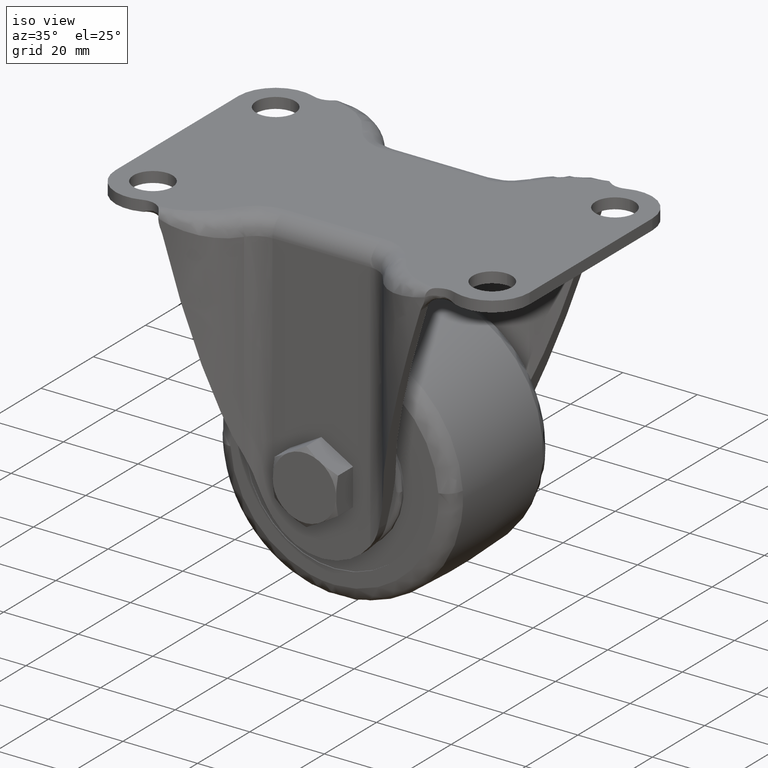
[diagram: clean part render]
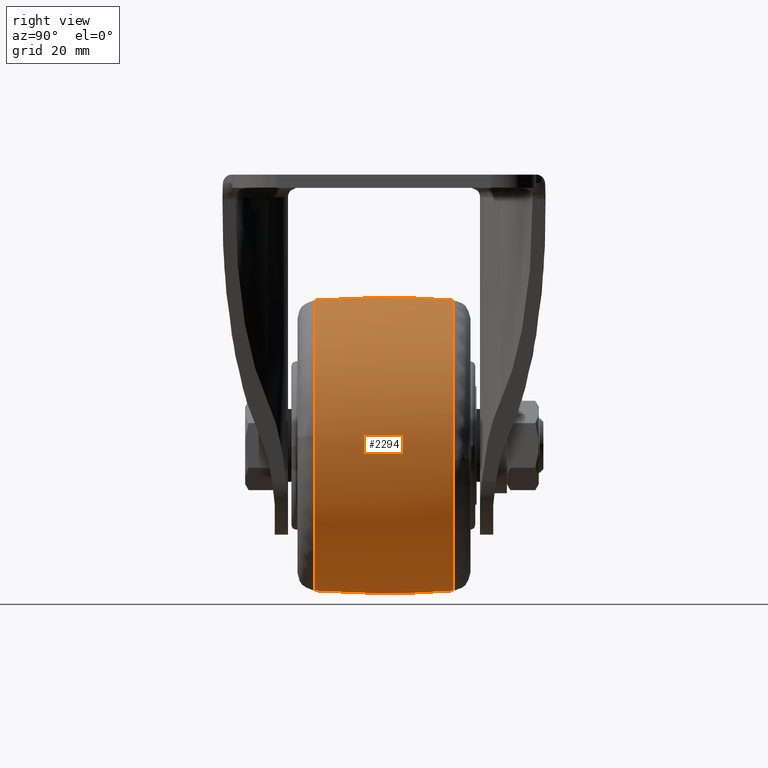
[diagram: tour spotlight — one face highlighted and labeled with its STEP entity id]
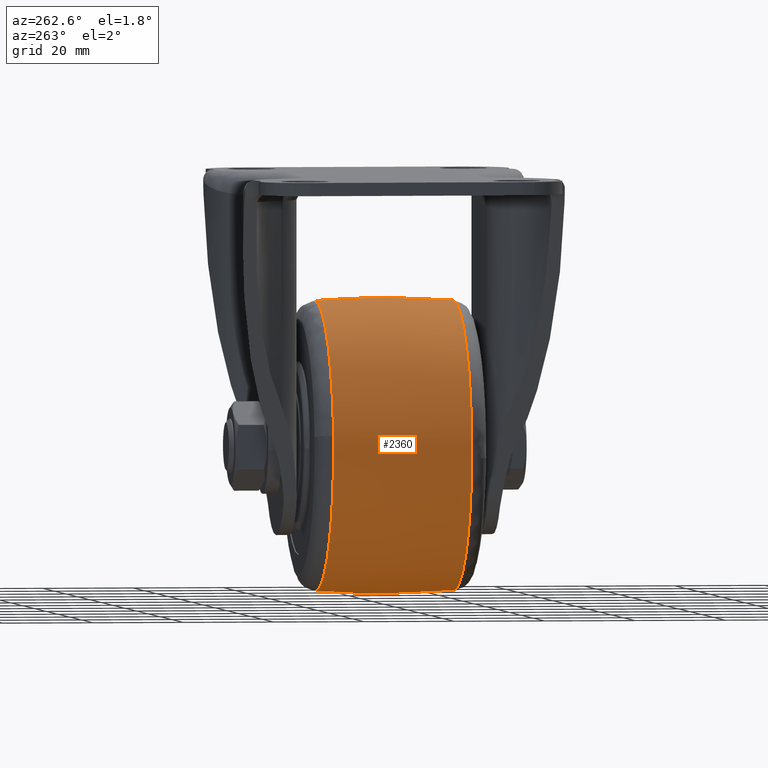
[diagram: tour spotlight — one face highlighted and labeled with its STEP entity id]
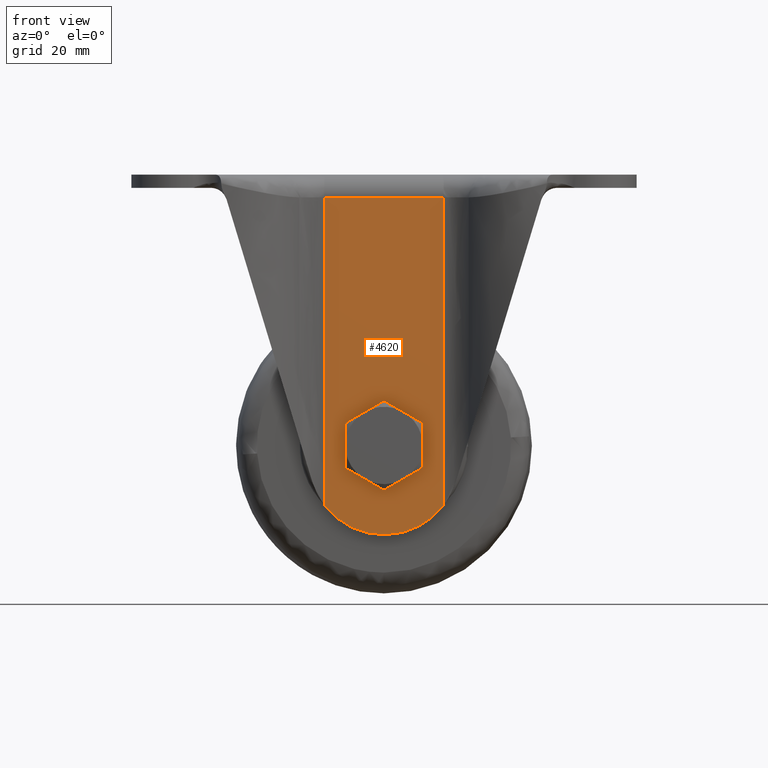
[diagram: tour spotlight — one face highlighted and labeled with its STEP entity id]
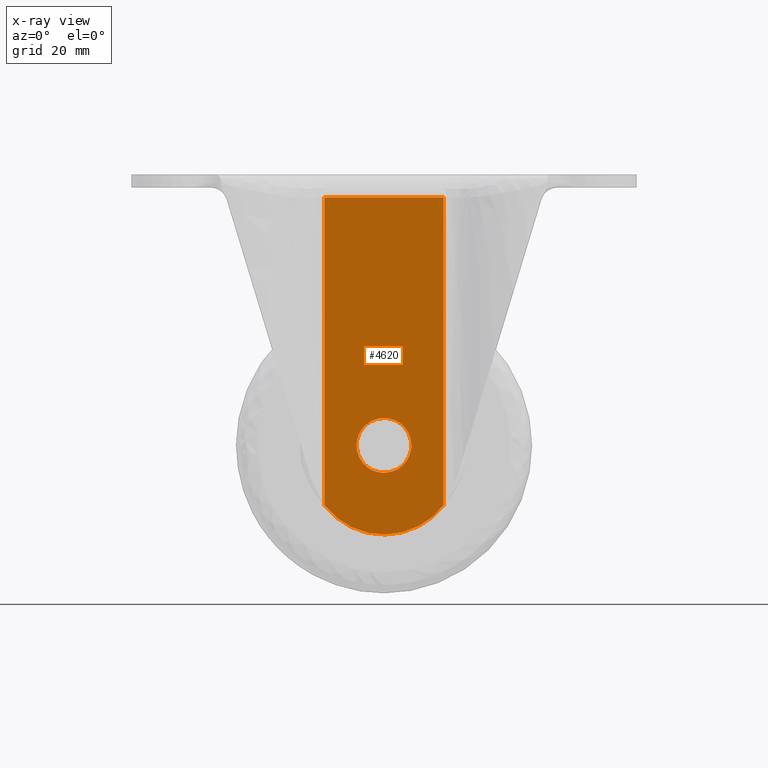
[diagram: x-ray of the same camera — body ghosted, this tour face saturated]
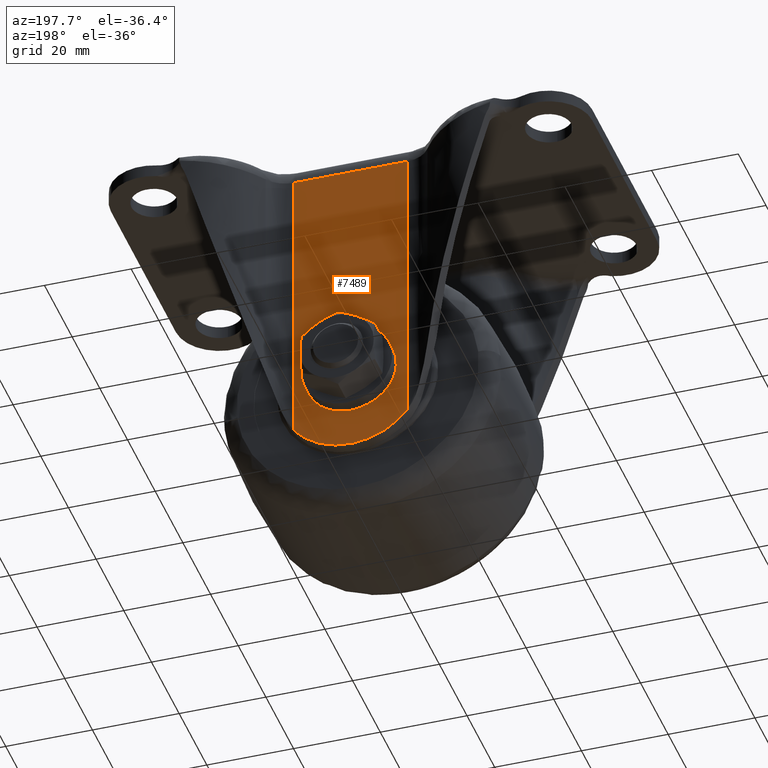
[diagram: tour spotlight — one face highlighted and labeled with its STEP entity id]
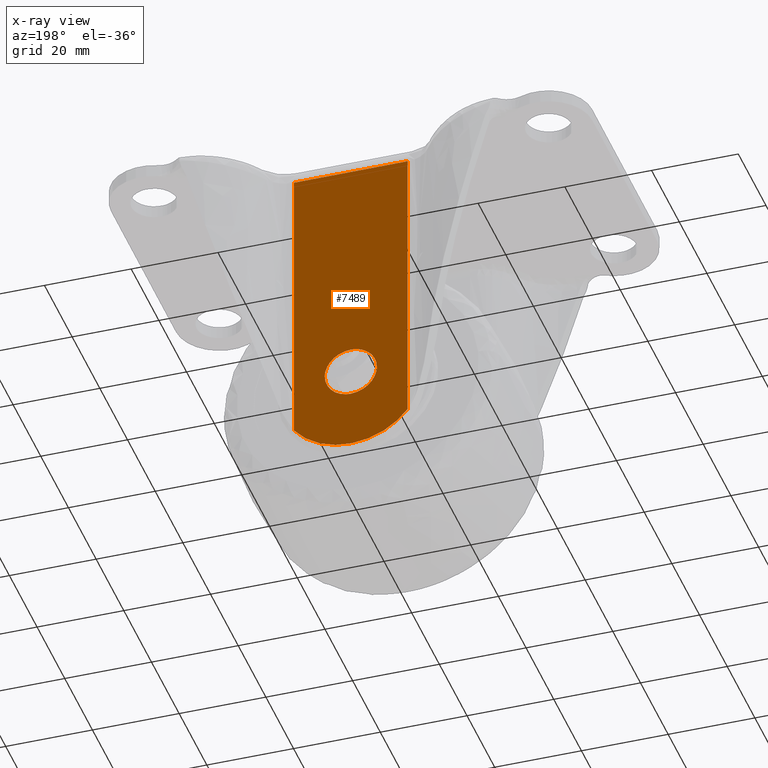
[diagram: x-ray of the same camera — body ghosted, this tour face saturated]
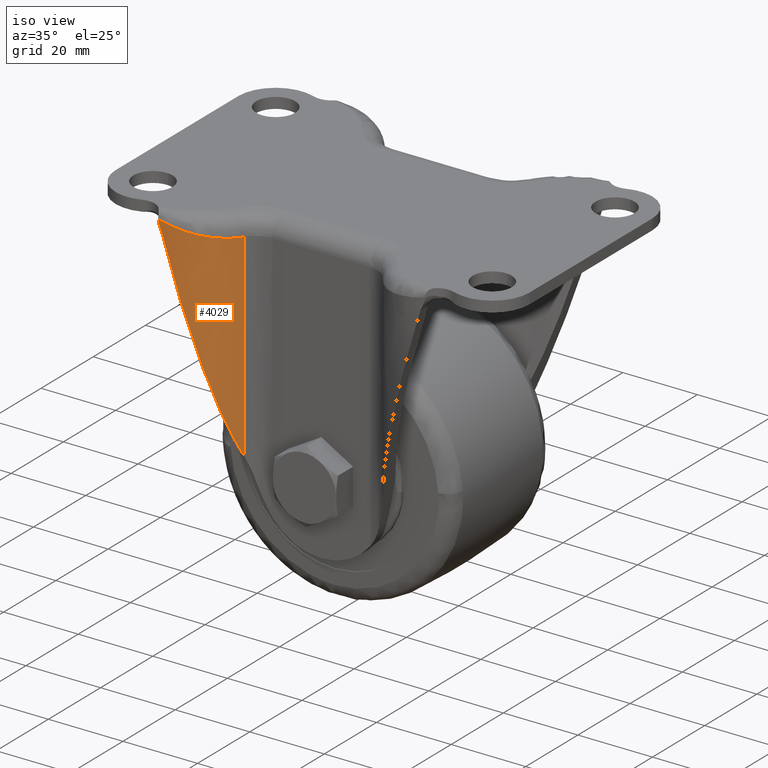
[diagram: tour spotlight — one face highlighted and labeled with its STEP entity id]
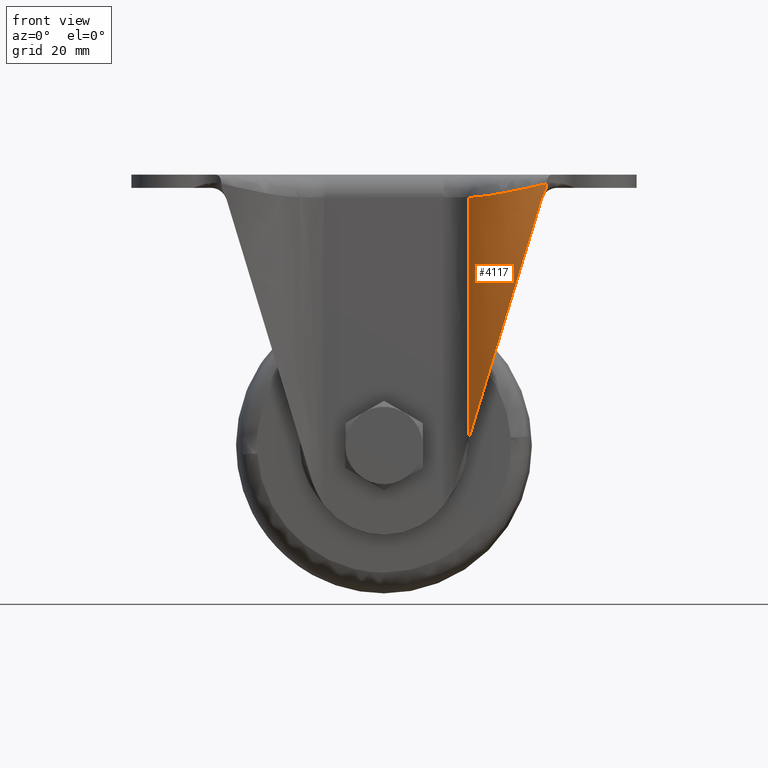
[diagram: tour spotlight — one face highlighted and labeled with its STEP entity id]
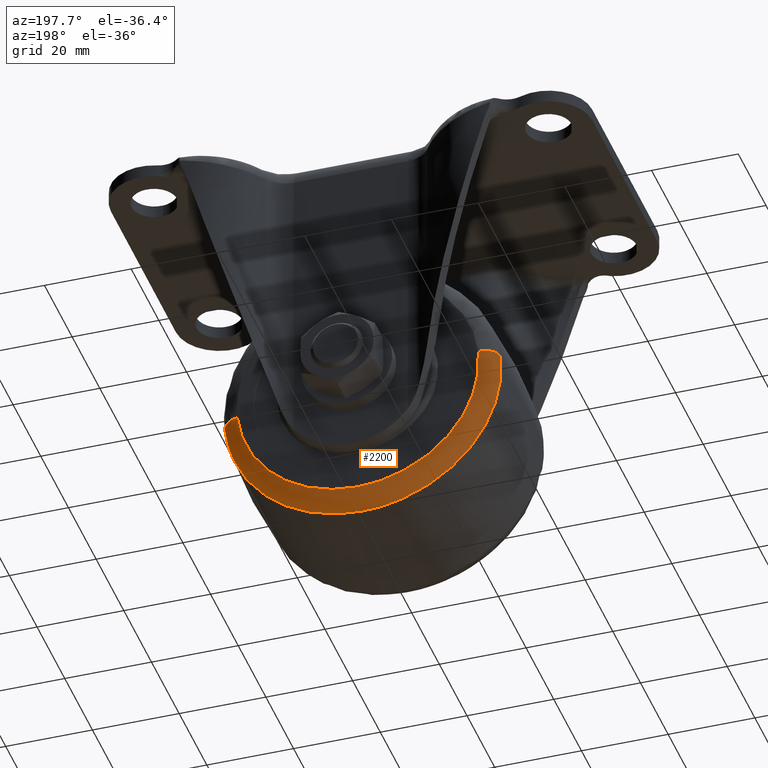
[diagram: tour spotlight — one face highlighted and labeled with its STEP entity id]
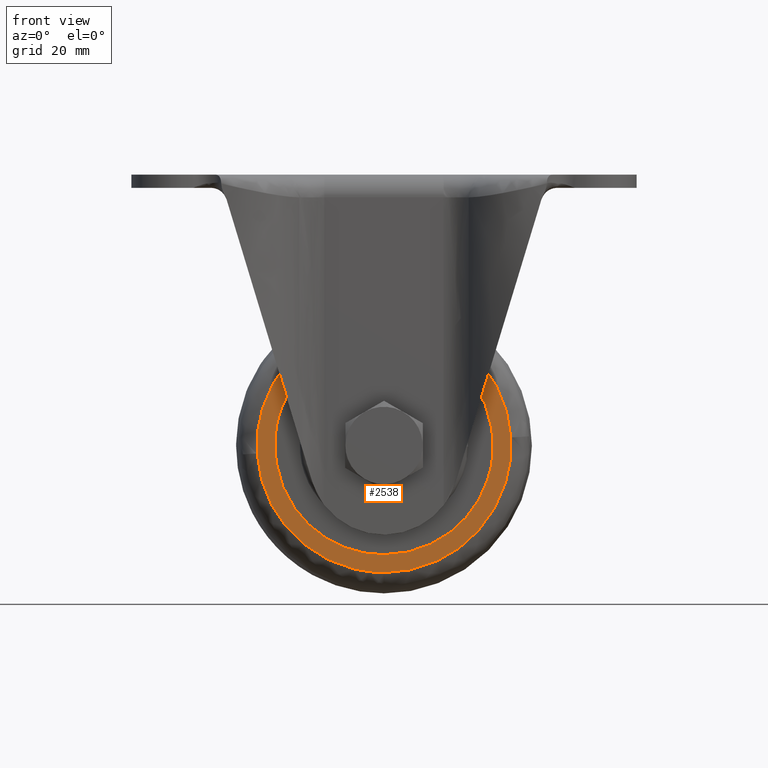
[diagram: tour spotlight — one face highlighted and labeled with its STEP entity id]
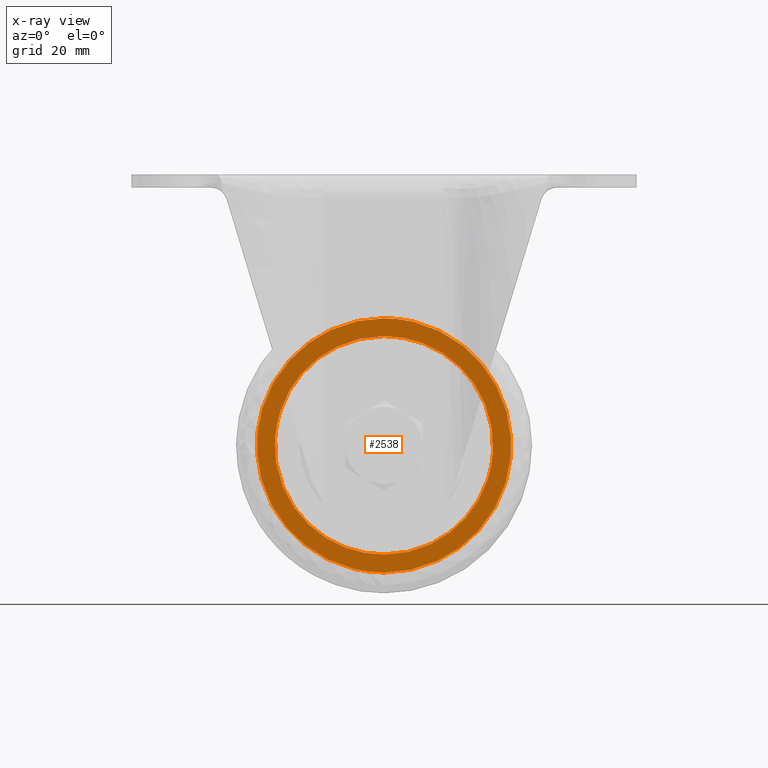
[diagram: x-ray of the same camera — body ghosted, this tour face saturated]
A machine part: a face-by-face anatomy tour. The part has 160 B-rep faces; the first image is the clean iso view, then the 8 largest visible faces are spotlighted one at a time (largest first), each with its STEP entity span.

Face 1 — right view, entity #2294. In plain terms, the highlighted face is a freeform B-spline surface patch.
Definition (entity closure, byte-faithful):
#2087=CARTESIAN_POINT('',(0.0,15.306127033187870,-27.586553925660269));
#2088=VERTEX_POINT('',#2087);
#2102=CARTESIAN_POINT('',(31.752315801321512,15.306127020088390,-62.702888192434543));
#2103=VERTEX_POINT('',#2102);
#2104=CARTESIAN_POINT('',(31.752315801321505,15.306127020088393,-62.702888192434536));
#2105=CARTESIAN_POINT('',(31.913446257842615,15.306127020385711,-61.105497151982966));
#2106=CARTESIAN_POINT('',(31.913446262176141,15.306127020714660,-59.499999983453073));
#2107=CARTESIAN_POINT('',(31.913446348316384,15.306127027253270,-27.586553917803606));
#2108=CARTESIAN_POINT('',(0.0,15.306127033187870,-27.586553925660269));
#2116=(BOUNDED_CURVE()B_SPLINE_CURVE(2,(#2104,#2105,#2106,#2107,#2108),.UNSPECIFIED.,.F.,.U.)B_SPLINE_CURVE_WITH_KNOTS((3,2,3),(0.232576558730508,0.250000000000000,0.500000000000000),.UNSPECIFIED.)CURVE()GEOMETRIC_REPRESENTATION_ITEM()RATIONAL_B_SPLINE_CURVE((0.962019631752525,0.979587168815085,1.0,0.707106781186548,1.0))REPRESENTATION_ITEM(''));
#2117=EDGE_CURVE('',#2103,#2088,#2116,.T.);
#2166=CARTESIAN_POINT('',(0.0,15.306127033237340,-91.413446074337315));
#2167=VERTEX_POINT('',#2166);
#2168=CARTESIAN_POINT('',(0.0,15.306127033237340,-91.413446074337315));
#2169=CARTESIAN_POINT('',(28.856252829079569,15.306127026673989,-91.413446065648273));
#2170=CARTESIAN_POINT('',(31.752315801321505,15.306127020088393,-62.702888192434536));
#2178=(BOUNDED_CURVE()B_SPLINE_CURVE(2,(#2168,#2169,#2170),.UNSPECIFIED.,.F.,.U.)B_SPLINE_CURVE_WITH_KNOTS((3,3),(0.0,0.232576558730508),.UNSPECIFIED.)CURVE()GEOMETRIC_REPRESENTATION_ITEM()RATIONAL_B_SPLINE_CURVE((1.0,0.727519612371463,0.962019631752525))REPRESENTATION_ITEM(''));
#2179=EDGE_CURVE('',#2167,#2103,#2178,.T.);
#2201=CARTESIAN_POINT('',(-0.888761945045057,-16.830030047709084,-91.290617161454662));
#2202=CARTESIAN_POINT('',(-0.928496606205693,0.000003551365420,-92.711908214745463));
#2203=CARTESIAN_POINT('',(-0.888761928394695,16.830037100143699,-91.290616565878651));
#2204=CARTESIAN_POINT('',(-0.446968936051596,-16.830030047709080,-91.290617161454648));
#2205=CARTESIAN_POINT('',(-0.466951968991243,0.000003551365419,-92.711908214745463));
#2206=CARTESIAN_POINT('',(-0.446968927677931,16.830037100143691,-91.290616565878636));
#2207=CARTESIAN_POINT('',(31.790617161453962,-16.830030047709084,-91.290617161454662));
#2208=CARTESIAN_POINT('',(33.211908214744753,0.000003551365411,-92.711908214745463));
#2209=CARTESIAN_POINT('',(31.790616565877940,16.830037100143684,-91.290616565878622));
#2210=CARTESIAN_POINT('',(31.790617161453966,-16.830030047709080,-59.500000000000696));
#2211=CARTESIAN_POINT('',(33.211908214744760,0.000003551365419,-59.500000000000682));
#2212=CARTESIAN_POINT('',(31.790616565877951,16.830037100143695,-59.500000000000696));
#2213=CARTESIAN_POINT('',(31.790617161453948,-16.830030047709084,-27.709382838546745));
#2214=CARTESIAN_POINT('',(33.211908214744753,0.000003551365411,-26.288091785255943));
#2215=CARTESIAN_POINT('',(31.790616565877926,16.830037100143684,-27.709383434122753));
#2216=CARTESIAN_POINT('',(-0.446968936051595,-16.830030047709080,-27.709382838546741));
#2217=CARTESIAN_POINT('',(-0.466951968991242,0.000003551365419,-26.288091785255929));
#2218=CARTESIAN_POINT('',(-0.446968927677930,16.830037100143691,-27.709383434122753));
#2219=CARTESIAN_POINT('',(-0.888761945045055,-16.830030047709084,-27.709382838546734));
#2220=CARTESIAN_POINT('',(-0.928496606205690,0.000003551365420,-26.288091785255936));
#2221=CARTESIAN_POINT('',(-0.888761928394692,16.830037100143699,-27.709383434122753));
#2229=(BOUNDED_SURFACE()B_SPLINE_SURFACE(2,2,((#2201,#2204,#2207,#2210,#2213,#2216,#2219),(#2202,#2205,#2208,#2211,#2214,#2217,#2220),(#2203,#2206,#2209,#2212,#2215,#2218,#2221)),.UNSPECIFIED.,.F.,.F.,.U.)B_SPLINE_SURFACE_WITH_KNOTS((3,3),(3,1,2,1,3),(0.0,33.719867911993227),(0.0,1.076955262170048,54.924718370672338,108.772481479174600,109.849436741344700),.UNSPECIFIED.)GEOMETRIC_REPRESENTATION_ITEM()RATIONAL_B_SPLINE_SURFACE(((0.931165207336233,0.925773732891923,0.650808536232096,0.920382258447612,0.650808536232096,0.925773732891923,0.931165207336233),(0.927862443552100,0.922490092209037,0.648500173712817,0.917117740865973,0.648500173712817,0.922490092209037,0.927862443552100),(0.931165208725146,0.925773734272793,0.650808537202833,0.920382259820441,0.650808537202833,0.925773734272793,0.931165208725146)))REPRESENTATION_ITEM('')SURFACE());
#2230=CARTESIAN_POINT('',(0.0,-15.306124971610689,-91.413446232579020));
#2231=VERTEX_POINT('',#2230);
#2232=CARTESIAN_POINT('',(0.0,-15.306124971610691,-91.413446232579105));
#2233=CARTESIAN_POINT('',(0.0,0.000001036886304,-92.588279133486054));
#2234=CARTESIAN_POINT('',(0.0,15.306127033237340,-91.413446074337415));
#2242=(BOUNDED_CURVE()B_SPLINE_CURVE(2,(#2232,#2233,#2234),.UNSPECIFIED.,.F.,.U.)B_SPLINE_CURVE_WITH_KNOTS((3,3),(0.435568303106248,0.564431705597773),.UNSPECIFIED.)CURVE()GEOMETRIC_REPRESENTATION_ITEM()RATIONAL_B_SPLINE_CURVE((0.920099219158498,0.917400780659238,0.920099219523028))REPRESENTATION_ITEM(''));
#2243=EDGE_CURVE('',#2231,#2167,#2242,.T.);
#2244=ORIENTED_EDGE('',*,*,#2243,.T.);
#2245=ORIENTED_EDGE('',*,*,#2179,.T.);
#2246=ORIENTED_EDGE('',*,*,#2117,.T.);
#2247=CARTESIAN_POINT('',(0.0,-15.306123710281490,-27.586553670608140));
#2248=VERTEX_POINT('',#2247);
#2249=CARTESIAN_POINT('',(0.0,-15.306123710281494,-27.586553670608062));
#2250=CARTESIAN_POINT('',(0.0,0.000001671241548,-26.411720915209560));
#2251=CARTESIAN_POINT('',(0.0,15.306127033187884,-27.586553925660183));
#2259=(BOUNDED_CURVE()B_SPLINE_CURVE(2,(#2249,#2250,#2251),.UNSPECIFIED.,.F.,.U.)B_SPLINE_CURVE_WITH_KNOTS((3,3),(0.435568308431477,0.564431705597564),.UNSPECIFIED.)CURVE()GEOMETRIC_REPRESENTATION_ITEM()RATIONAL_B_SPLINE_CURVE((0.920099218935474,0.917400780770754,0.920099219523019))REPRESENTATION_ITEM(''));
#2260=EDGE_CURVE('',#2248,#2088,#2259,.T.);
#2261=ORIENTED_EDGE('',*,*,#2260,.F.);
#2262=CARTESIAN_POINT('',(31.850472460293840,-15.306124296166930,-57.496138123287380));
#2263=VERTEX_POINT('',#2262);
#2264=CARTESIAN_POINT('',(31.850472460293840,-15.306124296166935,-57.496138123287380));
#2265=CARTESIAN_POINT('',(29.968720971264347,-15.306123707691787,-27.586553672866270));
#2266=CARTESIAN_POINT('',(0.0,-15.306123710281490,-27.586553670608140));
#2274=(BOUNDED_CURVE()B_SPLINE_CURVE(2,(#2264,#2265,#2266),.UNSPECIFIED.,.F.,.U.)B_SPLINE_CURVE_WITH_KNOTS((3,3),(0.260968089047784,0.500000000000000),.UNSPECIFIED.)CURVE()GEOMETRIC_REPRESENTATION_ITEM()RATIONAL_B_SPLINE_CURVE((0.975427680906863,0.719956696808299,1.0))REPRESENTATION_ITEM(''));
#2275=EDGE_CURVE('',#2263,#2248,#2274,.T.);
#2276=ORIENTED_EDGE('',*,*,#2275,.F.);
#2277=CARTESIAN_POINT('',(0.0,-15.306124971610689,-91.413446232579020));
#2278=CARTESIAN_POINT('',(31.913446392499825,-15.306124969178805,-91.413446234699563));
#2279=CARTESIAN_POINT('',(31.913446356607778,-15.306124335924499,-59.499999955972250));
#2280=CARTESIAN_POINT('',(31.913446355479820,-15.306124316023679,-58.497079522480533));
#2281=CARTESIAN_POINT('',(31.850472460293840,-15.306124296166935,-57.496138123287380));
#2289=(BOUNDED_CURVE()B_SPLINE_CURVE(2,(#2277,#2278,#2279,#2280,#2281),.UNSPECIFIED.,.F.,.U.)B_SPLINE_CURVE_WITH_KNOTS((3,2,3),(0.0,0.250000000000000,0.260968089047784),.UNSPECIFIED.)CURVE()GEOMETRIC_REPRESENTATION_ITEM()RATIONAL_B_SPLINE_CURVE((1.0,0.707106781186548,1.0,0.987150084378248,0.975427680906863))REPRESENTATION_ITEM(''));
#2290=EDGE_CURVE('',#2231,#2263,#2289,.T.);
#2291=ORIENTED_EDGE('',*,*,#2290,.F.);
#2292=EDGE_LOOP('',(#2244,#2245,#2246,#2261,#2276,#2291));
#2293=FACE_OUTER_BOUND('',#2292,.T.);
#2294=ADVANCED_FACE('',(#2293),#2229,.T.);

Face 2 — auxiliary view, entity #2360. In plain terms, the highlighted face is a freeform B-spline surface patch.
Definition (entity closure, byte-faithful):
#2072=CARTESIAN_POINT('',(-31.752315801321888,15.306127020083430,-56.297111807566822));
#2073=VERTEX_POINT('',#2072);
#2087=CARTESIAN_POINT('',(0.0,15.306127033187870,-27.586553925660269));
#2088=VERTEX_POINT('',#2087);
#2089=CARTESIAN_POINT('',(0.0,15.306127033187870,-27.586553925660269));
#2090=CARTESIAN_POINT('',(-28.856252829083008,15.306127026624523,-27.586553934349315));
#2091=CARTESIAN_POINT('',(-31.752315801321885,15.306127020083430,-56.297111807566822));
#2099=(BOUNDED_CURVE()B_SPLINE_CURVE(2,(#2089,#2090,#2091),.UNSPECIFIED.,.F.,.U.)B_SPLINE_CURVE_WITH_KNOTS((3,3),(0.500000000000000,0.732576558730528),.UNSPECIFIED.)CURVE()GEOMETRIC_REPRESENTATION_ITEM()RATIONAL_B_SPLINE_CURVE((1.0,0.727519612371439,0.962019631752566))REPRESENTATION_ITEM(''));
#2100=EDGE_CURVE('',#2088,#2073,#2099,.T.);
#2166=CARTESIAN_POINT('',(0.0,15.306127033237340,-91.413446074337315));
#2167=VERTEX_POINT('',#2166);
#2181=CARTESIAN_POINT('',(-31.752315801321885,15.306127020083430,-56.297111807566822));
#2182=CARTESIAN_POINT('',(-31.913446257842608,15.306127020383219,-57.894502848016522));
#2183=CARTESIAN_POINT('',(-31.913446262176141,15.306127020714660,-59.500000016544519));
#2184=CARTESIAN_POINT('',(-31.913446348316384,15.306127027302727,-91.413446082194000));
#2185=CARTESIAN_POINT('',(0.0,15.306127033237340,-91.413446074337315));
#2193=(BOUNDED_CURVE()B_SPLINE_CURVE(2,(#2181,#2182,#2183,#2184,#2185),.UNSPECIFIED.,.F.,.U.)B_SPLINE_CURVE_WITH_KNOTS((3,2,3),(0.732576558730528,0.750000000000000,1.0),.UNSPECIFIED.)CURVE()GEOMETRIC_REPRESENTATION_ITEM()RATIONAL_B_SPLINE_CURVE((0.962019631752566,0.979587168815109,1.0,0.707106781186548,1.0))REPRESENTATION_ITEM(''));
#2194=EDGE_CURVE('',#2073,#2167,#2193,.T.);
#2230=CARTESIAN_POINT('',(0.0,-15.306124971610689,-91.413446232579020));
#2231=VERTEX_POINT('',#2230);
#2232=CARTESIAN_POINT('',(0.0,-15.306124971610691,-91.413446232579105));
#2233=CARTESIAN_POINT('',(0.0,0.000001036886304,-92.588279133486054));
#2234=CARTESIAN_POINT('',(0.0,15.306127033237340,-91.413446074337415));
#2242=(BOUNDED_CURVE()B_SPLINE_CURVE(2,(#2232,#2233,#2234),.UNSPECIFIED.,.F.,.U.)B_SPLINE_CURVE_WITH_KNOTS((3,3),(0.435568303106248,0.564431705597773),.UNSPECIFIED.)CURVE()GEOMETRIC_REPRESENTATION_ITEM()RATIONAL_B_SPLINE_CURVE((0.920099219158498,0.917400780659238,0.920099219523028))REPRESENTATION_ITEM(''));
#2243=EDGE_CURVE('',#2231,#2167,#2242,.T.);
#2247=CARTESIAN_POINT('',(0.0,-15.306123710281490,-27.586553670608140));
#2248=VERTEX_POINT('',#2247);
#2249=CARTESIAN_POINT('',(0.0,-15.306123710281494,-27.586553670608062));
#2250=CARTESIAN_POINT('',(0.0,0.000001671241548,-26.411720915209560));
#2251=CARTESIAN_POINT('',(0.0,15.306127033187884,-27.586553925660183));
#2259=(BOUNDED_CURVE()B_SPLINE_CURVE(2,(#2249,#2250,#2251),.UNSPECIFIED.,.F.,.U.)B_SPLINE_CURVE_WITH_KNOTS((3,3),(0.435568308431477,0.564431705597564),.UNSPECIFIED.)CURVE()GEOMETRIC_REPRESENTATION_ITEM()RATIONAL_B_SPLINE_CURVE((0.920099218935474,0.917400780770754,0.920099219523019))REPRESENTATION_ITEM(''));
#2260=EDGE_CURVE('',#2248,#2088,#2259,.T.);
#2295=CARTESIAN_POINT('',(0.888761945045057,-16.830030047709084,-27.709382838546734));
#2296=CARTESIAN_POINT('',(0.928496606205693,0.000003551365420,-26.288091785255936));
#2297=CARTESIAN_POINT('',(0.888761928394695,16.830037100143699,-27.709383434122753));
#2298=CARTESIAN_POINT('',(0.446968936051596,-16.830030047709080,-27.709382838546741));
#2299=CARTESIAN_POINT('',(0.466951968991243,0.000003551365419,-26.288091785255929));
#2300=CARTESIAN_POINT('',(0.446968927677931,16.830037100143691,-27.709383434122749));
#2301=CARTESIAN_POINT('',(-31.790617161453962,-16.830030047709084,-27.709382838546745));
#2302=CARTESIAN_POINT('',(-33.211908214744753,0.000003551365411,-26.288091785255943));
#2303=CARTESIAN_POINT('',(-31.790616565877940,16.830037100143684,-27.709383434122767));
#2304=CARTESIAN_POINT('',(-31.790617161453966,-16.830030047709080,-59.500000000000696));
#2305=CARTESIAN_POINT('',(-33.211908214744760,0.000003551365419,-59.500000000000682));
#2306=CARTESIAN_POINT('',(-31.790616565877951,16.830037100143695,-59.500000000000696));
#2307=CARTESIAN_POINT('',(-31.790617161453948,-16.830030047709084,-91.290617161454662));
#2308=CARTESIAN_POINT('',(-33.211908214744753,0.000003551365411,-92.711908214745463));
#2309=CARTESIAN_POINT('',(-31.790616565877926,16.830037100143684,-91.290616565878651));
#2310=CARTESIAN_POINT('',(0.446968936051595,-16.830030047709080,-91.290617161454648));
#2311=CARTESIAN_POINT('',(0.466951968991242,0.000003551365419,-92.711908214745449));
#2312=CARTESIAN_POINT('',(0.446968927677930,16.830037100143691,-91.290616565878636));
#2313=CARTESIAN_POINT('',(0.888761945045055,-16.830030047709084,-91.290617161454662));
#2314=CARTESIAN_POINT('',(0.928496606205690,0.000003551365420,-92.711908214745463));
#2315=CARTESIAN_POINT('',(0.888761928394692,16.830037100143699,-91.290616565878651));
#2323=(BOUNDED_SURFACE()B_SPLINE_SURFACE(2,2,((#2295,#2298,#2301,#2304,#2307,#2310,#2313),(#2296,#2299,#2302,#2305,#2308,#2311,#2314),(#2297,#2300,#2303,#2306,#2309,#2312,#2315)),.UNSPECIFIED.,.F.,.F.,.U.)B_SPLINE_SURFACE_WITH_KNOTS((3,3),(3,1,2,1,3),(0.0,33.719867911993227),(0.0,1.076955262170049,54.924718370672352,108.772481479174700,109.849436741344700),.UNSPECIFIED.)GEOMETRIC_REPRESENTATION_ITEM()RATIONAL_B_SPLINE_SURFACE(((0.931165207336233,0.925773732891923,0.650808536232096,0.920382258447612,0.650808536232096,0.925773732891923,0.931165207336233),(0.927862443552100,0.922490092209037,0.648500173712817,0.917117740865973,0.648500173712817,0.922490092209037,0.927862443552100),(0.931165208725146,0.925773734272793,0.650808537202833,0.920382259820441,0.650808537202833,0.925773734272793,0.931165208725146)))REPRESENTATION_ITEM('')SURFACE());
#2324=ORIENTED_EDGE('',*,*,#2243,.F.);
#2325=CARTESIAN_POINT('',(-31.850472454226800,-15.306124375366441,-61.503861876332309));
#2326=VERTEX_POINT('',#2325);
#2327=CARTESIAN_POINT('',(-31.850472454226800,-15.306124375366446,-61.503861876332302));
#2328=CARTESIAN_POINT('',(-29.968720880349736,-15.306124969020992,-91.413446230320901));
#2329=CARTESIAN_POINT('',(0.0,-15.306124971610689,-91.413446232579020));
#2337=(BOUNDED_CURVE()B_SPLINE_CURVE(2,(#2327,#2328,#2329),.UNSPECIFIED.,.F.,.U.)B_SPLINE_CURVE_WITH_KNOTS((3,3),(0.760968089569853,1.0),.UNSPECIFIED.)CURVE()GEOMETRIC_REPRESENTATION_ITEM()RATIONAL_B_SPLINE_CURVE((0.975427679790917,0.719956697419941,1.0))REPRESENTATION_ITEM(''));
#2338=EDGE_CURVE('',#2326,#2231,#2337,.T.);
#2339=ORIENTED_EDGE('',*,*,#2338,.F.);
#2340=CARTESIAN_POINT('',(0.0,-15.306123710281490,-27.586553670608140));
#2341=CARTESIAN_POINT('',(-31.913446392499811,-15.306123707849594,-27.586553668487610));
#2342=CARTESIAN_POINT('',(-31.913446356607761,-15.306124335924491,-59.499999947214917));
#2343=CARTESIAN_POINT('',(-31.913446355479810,-15.306124355662545,-60.502920429065938));
#2344=CARTESIAN_POINT('',(-31.850472454226800,-15.306124375366446,-61.503861876332302));
#2352=(BOUNDED_CURVE()B_SPLINE_CURVE(2,(#2340,#2341,#2342,#2343,#2344),.UNSPECIFIED.,.F.,.U.)B_SPLINE_CURVE_WITH_KNOTS((3,2,3),(0.500000000000000,0.750000000000000,0.760968089569853),.UNSPECIFIED.)CURVE()GEOMETRIC_REPRESENTATION_ITEM()RATIONAL_B_SPLINE_CURVE((1.0,0.707106781186548,1.0,0.987150083766607,0.975427679790917))REPRESENTATION_ITEM(''));
#2353=EDGE_CURVE('',#2248,#2326,#2352,.T.);
#2354=ORIENTED_EDGE('',*,*,#2353,.F.);
#2355=ORIENTED_EDGE('',*,*,#2260,.T.);
#2356=ORIENTED_EDGE('',*,*,#2100,.T.);
#2357=ORIENTED_EDGE('',*,*,#2194,.T.);
#2358=EDGE_LOOP('',(#2324,#2339,#2354,#2355,#2356,#2357));
#2359=FACE_OUTER_BOUND('',#2358,.T.);
#2360=ADVANCED_FACE('',(#2359),#2323,.T.);

Face 3 — front view, entity #4620. An x-ray twin of the same camera follows (body ghosted, this face saturated) — the face is partly hidden behind the body. In plain terms, the highlighted face is a freeform B-spline surface patch.
Definition (entity closure, byte-faithful):
#3469=CARTESIAN_POINT('',(-6.004737349291819,-24.0,-59.552402549338439));
#3470=VERTEX_POINT('',#3469);
#3471=CARTESIAN_POINT('',(0.0,-24.0,-65.504966000000110));
#3472=VERTEX_POINT('',#3471);
#3473=CARTESIAN_POINT('',(-6.004737349291821,-24.0,-59.552402549338446));
#3474=CARTESIAN_POINT('',(-5.952790114672094,-24.000000000000004,-65.504966000000124));
#3475=CARTESIAN_POINT('',(0.0,-24.0,-65.504966000000110));
#3483=(BOUNDED_CURVE()B_SPLINE_CURVE(2,(#3473,#3474,#3475),.UNSPECIFIED.,.F.,.U.)B_SPLINE_CURVE_WITH_KNOTS((3,3),(0.751539894345926,1.0),.UNSPECIFIED.)CURVE()GEOMETRIC_REPRESENTATION_ITEM()RATIONAL_B_SPLINE_CURVE((0.996414028075090,0.708910879632991,1.0))REPRESENTATION_ITEM(''));
#3484=EDGE_CURVE('',#3470,#3472,#3483,.T.);
#3486=CARTESIAN_POINT('',(6.004737349291819,-24.0,-59.447597450661547));
#3487=VERTEX_POINT('',#3486);
#3488=CARTESIAN_POINT('',(0.0,-24.0,-65.504966000000110));
#3489=CARTESIAN_POINT('',(6.004966000000110,-24.0,-65.504966000000110));
#3490=CARTESIAN_POINT('',(6.004966000000110,-24.0,-59.500000000000000));
#3491=CARTESIAN_POINT('',(6.004966000000110,-24.000000000000007,-59.473798226489151));
#3492=CARTESIAN_POINT('',(6.004737349291820,-24.000000000000004,-59.447597450661569));
#3500=(BOUNDED_CURVE()B_SPLINE_CURVE(2,(#3488,#3489,#3490,#3491,#3492),.UNSPECIFIED.,.F.,.U.)B_SPLINE_CURVE_WITH_KNOTS((3,2,3),(0.0,0.250000000000000,0.251539894345926),.UNSPECIFIED.)CURVE()GEOMETRIC_REPRESENTATION_ITEM()RATIONAL_B_SPLINE_CURVE((1.0,0.707106781186547,1.0,0.998195901553556,0.996414028075090))REPRESENTATION_ITEM(''));
#3501=EDGE_CURVE('',#3472,#3487,#3500,.T.);
#3568=CARTESIAN_POINT('',(0.0,-24.0,-53.495033999999883));
#3569=VERTEX_POINT('',#3568);
#3570=CARTESIAN_POINT('',(0.0,-24.0,-53.495033999999883));
#3571=CARTESIAN_POINT('',(-6.004966000000110,-24.0,-53.495033999999897));
#3572=CARTESIAN_POINT('',(-6.004966000000110,-24.0,-59.500000000000000));
#3573=CARTESIAN_POINT('',(-6.004966000000110,-24.000000000000007,-59.526201773510849));
#3574=CARTESIAN_POINT('',(-6.004737349291820,-24.000000000000004,-59.552402549338446));
#3582=(BOUNDED_CURVE()B_SPLINE_CURVE(2,(#3570,#3571,#3572,#3573,#3574),.UNSPECIFIED.,.F.,.U.)B_SPLINE_CURVE_WITH_KNOTS((3,2,3),(0.500000000000000,0.750000000000000,0.751539894345926),.UNSPECIFIED.)CURVE()GEOMETRIC_REPRESENTATION_ITEM()RATIONAL_B_SPLINE_CURVE((1.0,0.707106781186547,1.0,0.998195901553556,0.996414028075090))REPRESENTATION_ITEM(''));
#3583=EDGE_CURVE('',#3569,#3470,#3582,.T.);
#3617=CARTESIAN_POINT('',(6.004737349291820,-23.999999999999996,-59.447597450661561));
#3618=CARTESIAN_POINT('',(5.952790114672085,-23.999999999999993,-53.495033999999876));
#3619=CARTESIAN_POINT('',(0.0,-24.0,-53.495033999999883));
#3627=(BOUNDED_CURVE()B_SPLINE_CURVE(2,(#3617,#3618,#3619),.UNSPECIFIED.,.F.,.U.)B_SPLINE_CURVE_WITH_KNOTS((3,3),(0.251539894345926,0.500000000000000),.UNSPECIFIED.)CURVE()GEOMETRIC_REPRESENTATION_ITEM()RATIONAL_B_SPLINE_CURVE((0.996414028075089,0.708910879632991,1.0))REPRESENTATION_ITEM(''));
#3628=EDGE_CURVE('',#3487,#3569,#3627,.T.);
#3679=CARTESIAN_POINT('',(13.112529000000640,-23.999999999999648,-72.615372927514002));
#3680=VERTEX_POINT('',#3679);
#3700=CARTESIAN_POINT('',(-13.112339000000080,-24.0,-72.615621673442291));
#3701=VERTEX_POINT('',#3700);
#3702=CARTESIAN_POINT('',(-13.112339000000080,-24.0,-72.615621673442291));
#3703=CARTESIAN_POINT('',(-12.417725831248200,-24.0,-73.525299456196322));
#3704=CARTESIAN_POINT('',(-11.083135146959631,-24.000000000000099,-74.939275140767862));
#3705=CARTESIAN_POINT('',(-8.890997289151644,-23.999999999999790,-76.566771862925293));
#3706=CARTESIAN_POINT('',(-6.906420154542095,-24.000000000000291,-77.638368338820328));
#3707=CARTESIAN_POINT('',(-4.503213310975804,-23.999999999999890,-78.549583937599280));
#3708=CARTESIAN_POINT('',(-1.860175539993448,-23.999999999999641,-79.087873210821115));
#3709=CARTESIAN_POINT('',(0.951082077568282,-24.000000000000050,-79.138166052318240));
#3710=CARTESIAN_POINT('',(3.303138813664660,-23.999999999999869,-78.815443455115485));
#3711=CARTESIAN_POINT('',(5.628320188742806,-24.000000000000089,-78.174216077863946));
#3712=CARTESIAN_POINT('',(7.657297217893557,-23.999999999999961,-77.277368959635155));
#3713=CARTESIAN_POINT('',(9.503498799746195,-24.000000000000082,-76.129712946015601));
#3714=CARTESIAN_POINT('',(11.304481615314980,-23.999999999999631,-74.710678862472818));
#3715=CARTESIAN_POINT('',(12.465797078637250,-24.000000000000750,-73.462294132649106));
#3716=CARTESIAN_POINT('',(13.112529000000640,-23.999999999999648,-72.615372927514002));
#3717=B_SPLINE_CURVE_WITH_KNOTS('',3,(#3702,#3703,#3704,#3705,#3706,#3707,#3708,#3709,#3710,#3711,#3712,#3713,#3714,#3715,#3716),.UNSPECIFIED.,.F.,.U.,(4,1,1,1,1,1,1,1,1,1,1,1,4),(0.000000103569533,3.433614908485872,5.801637265684818,8.169660874223364,10.182475154637670,13.497740385265439,16.220903356492130,18.588906306610241,20.601732532866549,23.443371116569079,25.219400504997900,27.113796305889348,30.310618016159300),.UNSPECIFIED.);
#3718=EDGE_CURVE('',#3701,#3680,#3717,.T.);
#4133=CARTESIAN_POINT('',(13.112529000000020,-24.0,-5.0));
#4134=VERTEX_POINT('',#4133);
#4148=CARTESIAN_POINT('',(13.112529000000640,-23.999999999999648,-72.615372927514002));
#4149=CARTESIAN_POINT('',(13.112529000000020,-24.0,-5.0));
#4150=QUASI_UNIFORM_CURVE('',1,(#4148,#4149),.UNSPECIFIED.,.F.,.U.);
#4151=EDGE_CURVE('',#3680,#4134,#4150,.T.);
#4593=CARTESIAN_POINT('',(-14.422271105771230,-24.0,-1.298714839803520));
#4594=CARTESIAN_POINT('',(-14.422271105771230,-24.0,-82.801093029915961));
#4595=CARTESIAN_POINT('',(14.422461809177561,-24.0,-1.298714839803520));
#4596=CARTESIAN_POINT('',(14.422461809177561,-24.0,-82.801093029915975));
#4597=B_SPLINE_SURFACE_WITH_KNOTS('',1,1,((#4593,#4595),(#4594,#4596)),.UNSPECIFIED.,.F.,.F.,.U.,(2,2),(2,2),(0.0,81.502378190112452),(0.0,28.844732914948800),.UNSPECIFIED.);
#4598=ORIENTED_EDGE('',*,*,#4151,.T.);
#4599=CARTESIAN_POINT('',(-13.112339000000080,-24.0,-5.0));
#4600=VERTEX_POINT('',#4599);
#4601=CARTESIAN_POINT('',(13.112529000000020,-24.0,-5.0));
#4602=CARTESIAN_POINT('',(-13.112339000000080,-24.0,-5.0));
#4603=QUASI_UNIFORM_CURVE('',1,(#4601,#4602),.UNSPECIFIED.,.F.,.U.);
#4604=EDGE_CURVE('',#4134,#4600,#4603,.T.);
#4605=ORIENTED_EDGE('',*,*,#4604,.T.);
#4606=CARTESIAN_POINT('',(-13.112339000000080,-24.0,-72.615621673442291));
#4607=CARTESIAN_POINT('',(-13.112339000000080,-24.0,-5.0));
#4608=QUASI_UNIFORM_CURVE('',1,(#4606,#4607),.UNSPECIFIED.,.F.,.U.);
#4609=EDGE_CURVE('',#3701,#4600,#4608,.T.);
#4610=ORIENTED_EDGE('',*,*,#4609,.F.);
#4611=ORIENTED_EDGE('',*,*,#3718,.T.);
#4612=EDGE_LOOP('',(#4598,#4605,#4610,#4611));
#4613=FACE_OUTER_BOUND('',#4612,.T.);
#4614=ORIENTED_EDGE('',*,*,#3501,.F.);
#4615=ORIENTED_EDGE('',*,*,#3484,.F.);
#4616=ORIENTED_EDGE('',*,*,#3583,.F.);
#4617=ORIENTED_EDGE('',*,*,#3628,.F.);
#4618=EDGE_LOOP('',(#4614,#4615,#4616,#4617));
#4619=FACE_BOUND('',#4618,.T.);
#4620=ADVANCED_FACE('',(#4613,#4619),#4597,.T.);

Face 4 — auxiliary view, entity #7489. An x-ray twin of the same camera follows (body ghosted, this face saturated) — the face is partly hidden behind the body. In plain terms, the highlighted face is a freeform B-spline surface patch.
Definition (entity closure, byte-faithful):
#3287=CARTESIAN_POINT('',(0.0,24.0,-53.495033999999883));
#3288=VERTEX_POINT('',#3287);
#3289=CARTESIAN_POINT('',(6.004737349292119,24.0,-59.447597450695909));
#3290=VERTEX_POINT('',#3289);
#3291=CARTESIAN_POINT('',(0.0,24.0,-53.495033999999883));
#3292=CARTESIAN_POINT('',(5.952790114706149,23.999999999999993,-53.495033999999883));
#3293=CARTESIAN_POINT('',(6.004737349292120,24.000000000000004,-59.447597450695909));
#3301=(BOUNDED_CURVE()B_SPLINE_CURVE(2,(#3291,#3292,#3293),.UNSPECIFIED.,.F.,.U.)B_SPLINE_CURVE_WITH_KNOTS((3,3),(0.0,0.248460105655082),.UNSPECIFIED.)CURVE()GEOMETRIC_REPRESENTATION_ITEM()RATIONAL_B_SPLINE_CURVE((1.0,0.708910879631811,0.996414028077422))REPRESENTATION_ITEM(''));
#3302=EDGE_CURVE('',#3288,#3290,#3301,.T.);
#3343=CARTESIAN_POINT('',(-6.004737349292119,24.0,-59.552402549304091));
#3344=VERTEX_POINT('',#3343);
#3350=CARTESIAN_POINT('',(-6.004737349292119,24.000000000000007,-59.552402549304098));
#3351=CARTESIAN_POINT('',(-6.004966000000110,24.000000000000004,-59.526201773493689));
#3352=CARTESIAN_POINT('',(-6.004966000000110,24.0,-59.500000000000000));
#3353=CARTESIAN_POINT('',(-6.004966000000110,24.0,-53.495033999999897));
#3354=CARTESIAN_POINT('',(0.0,24.0,-53.495033999999883));
#3362=(BOUNDED_CURVE()B_SPLINE_CURVE(2,(#3350,#3351,#3352,#3353,#3354),.UNSPECIFIED.,.F.,.U.)B_SPLINE_CURVE_WITH_KNOTS((3,2,3),(0.748460105655081,0.750000000000000,1.0),.UNSPECIFIED.)CURVE()GEOMETRIC_REPRESENTATION_ITEM()RATIONAL_B_SPLINE_CURVE((0.996414028077421,0.998195901554737,1.0,0.707106781186547,1.0))REPRESENTATION_ITEM(''));
#3363=EDGE_CURVE('',#3344,#3288,#3362,.T.);
#3386=CARTESIAN_POINT('',(0.0,24.0,-65.504966000000110));
#3387=VERTEX_POINT('',#3386);
#3388=CARTESIAN_POINT('',(6.004737349292120,23.999999999999996,-59.447597450695916));
#3389=CARTESIAN_POINT('',(6.004966000000110,24.000000000000004,-59.473798226506318));
#3390=CARTESIAN_POINT('',(6.004966000000110,24.0,-59.500000000000000));
#3391=CARTESIAN_POINT('',(6.004966000000110,24.0,-65.504966000000110));
#3392=CARTESIAN_POINT('',(0.0,24.0,-65.504966000000110));
#3400=(BOUNDED_CURVE()B_SPLINE_CURVE(2,(#3388,#3389,#3390,#3391,#3392),.UNSPECIFIED.,.F.,.U.)B_SPLINE_CURVE_WITH_KNOTS((3,2,3),(0.248460105655081,0.250000000000000,0.500000000000000),.UNSPECIFIED.)CURVE()GEOMETRIC_REPRESENTATION_ITEM()RATIONAL_B_SPLINE_CURVE((0.996414028077421,0.998195901554737,1.0,0.707106781186547,1.0))REPRESENTATION_ITEM(''));
#3401=EDGE_CURVE('',#3290,#3387,#3400,.T.);
#3403=CARTESIAN_POINT('',(0.0,24.0,-65.504966000000110));
#3404=CARTESIAN_POINT('',(-5.952790114706141,24.0,-65.504966000000110));
#3405=CARTESIAN_POINT('',(-6.004737349292119,24.000000000000007,-59.552402549304098));
#3413=(BOUNDED_CURVE()B_SPLINE_CURVE(2,(#3403,#3404,#3405),.UNSPECIFIED.,.F.,.U.)B_SPLINE_CURVE_WITH_KNOTS((3,3),(0.500000000000000,0.748460105655081),.UNSPECIFIED.)CURVE()GEOMETRIC_REPRESENTATION_ITEM()RATIONAL_B_SPLINE_CURVE((1.0,0.708910879631811,0.996414028077421))REPRESENTATION_ITEM(''));
#3414=EDGE_CURVE('',#3387,#3344,#3413,.T.);
#5420=CARTESIAN_POINT('',(13.112529342704841,24.0,-5.0));
#5421=VERTEX_POINT('',#5420);
#5481=CARTESIAN_POINT('',(-13.112339000000080,24.0,-5.0));
#5482=VERTEX_POINT('',#5481);
#5504=CARTESIAN_POINT('',(-13.112339000000080,24.0,-5.0));
#5505=CARTESIAN_POINT('',(13.112529342704841,24.0,-5.0));
#5506=QUASI_UNIFORM_CURVE('',1,(#5504,#5505),.UNSPECIFIED.,.F.,.U.);
#5507=EDGE_CURVE('',#5482,#5421,#5506,.T.);
#6769=CARTESIAN_POINT('',(13.112529342704841,24.0,-72.615372478840001));
#6770=VERTEX_POINT('',#6769);
#6771=CARTESIAN_POINT('',(13.112529342704841,24.0,-72.615372478840001));
#6772=CARTESIAN_POINT('',(13.112529342704841,24.0,-5.0));
#6773=QUASI_UNIFORM_CURVE('',1,(#6771,#6772),.UNSPECIFIED.,.F.,.U.);
#6774=EDGE_CURVE('',#6770,#5421,#6773,.T.);
#7450=CARTESIAN_POINT('',(-14.422271122889310,24.0,-82.801091042401353));
#7451=CARTESIAN_POINT('',(-14.422271122889310,24.0,-1.298712852291991));
#7452=CARTESIAN_POINT('',(14.422462168999850,24.0,-82.801091042401353));
#7453=CARTESIAN_POINT('',(14.422462168999850,24.0,-1.298712852291991));
#7454=B_SPLINE_SURFACE_WITH_KNOTS('',1,1,((#7450,#7452),(#7451,#7453)),.UNSPECIFIED.,.F.,.F.,.U.,(2,2),(2,2),(0.0,81.502378190109368),(0.0,28.844733291889160),.UNSPECIFIED.);
#7455=CARTESIAN_POINT('',(-13.112339000000080,24.0,-72.615621673442291));
#7456=VERTEX_POINT('',#7455);
#7457=CARTESIAN_POINT('',(-13.112339000000080,24.0,-72.615621673442291));
#7458=CARTESIAN_POINT('',(-13.112339000000080,24.0,-5.0));
#7459=QUASI_UNIFORM_CURVE('',1,(#7457,#7458),.UNSPECIFIED.,.F.,.U.);
#7460=EDGE_CURVE('',#7456,#5482,#7459,.T.);
#7461=ORIENTED_EDGE('',*,*,#7460,.T.);
#7462=ORIENTED_EDGE('',*,*,#5507,.T.);
#7463=ORIENTED_EDGE('',*,*,#6774,.F.);
#7464=CARTESIAN_POINT('',(13.112529342704841,24.0,-72.615372478840001));
#7465=CARTESIAN_POINT('',(12.513694163171230,24.000000000000028,-73.399533812134436));
#7466=CARTESIAN_POINT('',(11.362158806741540,23.999999999999979,-74.655421500674606));
#7467=CARTESIAN_POINT('',(9.292689107968856,23.999999999999972,-76.310347966508772));
#7468=CARTESIAN_POINT('',(7.097399232465058,24.000000000000160,-77.578521784448242));
#7469=CARTESIAN_POINT('',(4.391367965155017,23.999999999999972,-78.593426984411977));
#7470=CARTESIAN_POINT('',(1.584085181951407,23.999999999999950,-79.112962804440997));
#7471=CARTESIAN_POINT('',(-1.029592508031974,23.999999999999929,-79.122253924450732));
#7472=CARTESIAN_POINT('',(-3.614517992947546,23.999999999999790,-78.767728759974403));
#7473=CARTESIAN_POINT('',(-5.855887676374194,24.000000000001460,-78.097369149883050));
#7474=CARTESIAN_POINT('',(-8.389496293345964,23.999999999999421,-76.889466408560310));
#7475=CARTESIAN_POINT('',(-10.807502943259040,24.000000000000281,-75.225381711884253));
#7476=CARTESIAN_POINT('',(-12.393770037797429,23.999999999999840,-73.556663751274513));
#7477=CARTESIAN_POINT('',(-13.112339000000080,24.0,-72.615621673442291));
#7478=B_SPLINE_CURVE_WITH_KNOTS('',3,(#7464,#7465,#7466,#7467,#7468,#7469,#7470,#7471,#7472,#7473,#7474,#7475,#7476,#7477),.UNSPECIFIED.,.F.,.U.,(4,1,1,1,1,1,1,1,1,1,1,4),(0.000000103521721,2.959991370886055,5.091235973152823,7.932860400872084,10.537681024274541,13.734521770971259,16.457674061395100,18.352131106323849,21.548946117377419,23.443371553237260,26.758596878922798,30.310618580746411),.UNSPECIFIED.);
#7479=EDGE_CURVE('',#6770,#7456,#7478,.T.);
#7480=ORIENTED_EDGE('',*,*,#7479,.T.);
#7481=EDGE_LOOP('',(#7461,#7462,#7463,#7480));
#7482=FACE_OUTER_BOUND('',#7481,.T.);
#7483=ORIENTED_EDGE('',*,*,#3414,.F.);
#7484=ORIENTED_EDGE('',*,*,#3401,.F.);
#7485=ORIENTED_EDGE('',*,*,#3302,.F.);
#7486=ORIENTED_EDGE('',*,*,#3363,.F.);
#7487=EDGE_LOOP('',(#7483,#7484,#7485,#7486));
#7488=FACE_BOUND('',#7487,.T.);
#7489=ADVANCED_FACE('',(#7482,#7488),#7454,.T.);

Face 5 — iso view, entity #4029. In plain terms, the highlighted face is a freeform B-spline surface patch.
Definition (entity closure, byte-faithful):
#3788=CARTESIAN_POINT('',(-34.607577784185750,-35.485244668119449,-5.383569958113631));
#3789=VERTEX_POINT('',#3788);
#3790=CARTESIAN_POINT('',(-18.621833761987101,-27.051020408163250,-58.056952005455202));
#3791=VERTEX_POINT('',#3790);
#3792=CARTESIAN_POINT('',(-34.607577784185743,-35.485244668119449,-5.383569958113628));
#3793=CARTESIAN_POINT('',(-24.166527894351418,-35.908268214409276,-39.787061535289233));
#3794=CARTESIAN_POINT('',(-18.621833761987109,-27.051020408163250,-58.056952005455109));
#3802=(BOUNDED_CURVE()B_SPLINE_CURVE(2,(#3792,#3793,#3794),.UNSPECIFIED.,.F.,.U.)CURVE()GEOMETRIC_REPRESENTATION_ITEM()QUASI_UNIFORM_CURVE()RATIONAL_B_SPLINE_CURVE((1.0,0.864830609078626,1.0))REPRESENTATION_ITEM(''));
#3803=EDGE_CURVE('',#3789,#3791,#3802,.T.);
#3945=CARTESIAN_POINT('',(-18.219745447535171,-26.376426158011849,-59.458357092815262));
#3946=CARTESIAN_POINT('',(-18.219745447535171,-26.376426158011849,-0.564308296508855));
#3947=CARTESIAN_POINT('',(-24.320344126369971,-37.138663535158692,-59.458357092815255));
#3948=CARTESIAN_POINT('',(-24.320344126369971,-37.138663535158692,-0.564308296508855));
#3949=CARTESIAN_POINT('',(-36.554017326523663,-35.300104960051762,-59.458357092815262));
#3950=CARTESIAN_POINT('',(-36.554017326523663,-35.300104960051762,-0.564308296508855));
#3958=(BOUNDED_SURFACE()B_SPLINE_SURFACE(1,2,((#3945,#3947,#3949),(#3946,#3948,#3950)),.UNSPECIFIED.,.F.,.F.,.U.)B_SPLINE_SURFACE_WITH_KNOTS((2,2),(3,3),(0.0,58.894048796306407),(0.0,22.356594249323809),.UNSPECIFIED.)GEOMETRIC_REPRESENTATION_ITEM()RATIONAL_B_SPLINE_SURFACE(((1.0,0.824126188622016,1.0),(1.0,0.824126188622016,1.0)))REPRESENTATION_ITEM('')SURFACE());
#3959=CARTESIAN_POINT('',(-18.621833761987101,-27.051020408163250,-5.0));
#3960=VERTEX_POINT('',#3959);
#3961=CARTESIAN_POINT('',(-35.764846533676099,-35.400926609159747,-2.000748511052920));
#3962=VERTEX_POINT('',#3961);
#3963=CARTESIAN_POINT('',(-18.621833761987119,-27.051020408163279,-5.000000000000004));
#3964=CARTESIAN_POINT('',(-18.722879082576739,-27.209233532115029,-4.999279782243343));
#3965=CARTESIAN_POINT('',(-18.926539454922018,-27.528117608546271,-4.997828158203402));
#3966=CARTESIAN_POINT('',(-19.253390274609622,-27.997490791424561,-4.986346314740322));
#3967=CARTESIAN_POINT('',(-19.599171201225619,-28.463830583078970,-4.968090480306860));
#3968=CARTESIAN_POINT('',(-19.965597633624022,-28.925274922069089,-4.942362338849053));
#3969=CARTESIAN_POINT('',(-20.352558003409332,-29.381042038472881,-4.909353411777840));
#3970=CARTESIAN_POINT('',(-20.760388212209438,-29.830005288616292,-4.869011256139199));
#3971=CARTESIAN_POINT('',(-21.189243929729500,-30.271085109472342,-4.821350290839388));
#3972=CARTESIAN_POINT('',(-21.639268415103022,-30.703143110346229,-4.766366609129262));
#3973=CARTESIAN_POINT('',(-22.110542221549888,-31.125012917802810,-4.704061282451288));
#3974=CARTESIAN_POINT('',(-22.603092676041999,-31.535493865852029,-4.634434145531365));
#3975=CARTESIAN_POINT('',(-23.116886821344359,-31.933355122998279,-4.557484851452400));
#3976=CARTESIAN_POINT('',(-23.651829408740021,-32.317337540253313,-4.473215057281177));
#3977=CARTESIAN_POINT('',(-24.207757532420970,-32.686155527372733,-4.381618392313380));
#3978=CARTESIAN_POINT('',(-24.784443819060581,-33.038502869521388,-4.282719174705983));
#3979=CARTESIAN_POINT('',(-25.381568378748089,-33.373044143164577,-4.176424696567776));
#3980=CARTESIAN_POINT('',(-25.978087597627969,-33.677873325669701,-4.066893212338185));
#3981=CARTESIAN_POINT('',(-26.586494235021540,-33.961050105032513,-3.950799442732903));
#3982=CARTESIAN_POINT('',(-27.220694071399201,-34.228403306437727,-3.825622256542251));
#3983=CARTESIAN_POINT('',(-27.917780163858829,-34.490120339301477,-3.684922662546641));
#3984=CARTESIAN_POINT('',(-28.678998770921790,-34.739207216879343,-3.528591432860134));
#3985=CARTESIAN_POINT('',(-29.505180704955841,-34.968024589436133,-3.356654268774770));
#3986=CARTESIAN_POINT('',(-30.396597473582609,-35.168325050231253,-3.169099012967021));
#3987=CARTESIAN_POINT('',(-31.352818398185931,-35.331132377072237,-2.965922055735010));
#3988=CARTESIAN_POINT('',(-32.372637126040829,-35.447399560206897,-2.747134213437073));
#3989=CARTESIAN_POINT('',(-33.453643086455337,-35.505575007803373,-2.512677466261931));
#3990=CARTESIAN_POINT('',(-34.593212877330210,-35.501796100445063,-2.262778093498057));
#3991=CARTESIAN_POINT('',(-35.367998184380419,-35.435092940527220,-2.089501526912427));
#3992=CARTESIAN_POINT('',(-35.764846605445612,-35.400927290439938,-2.000748512068995));
#3993=B_SPLINE_CURVE_WITH_KNOTS('',3,(#3963,#3964,#3965,#3966,#3967,#3968,#3969,#3970,#3971,#3972,#3973,#3974,#3975,#3976,#3977,#3978,#3979,#3980,#3981,#3982,#3983,#3984,#3985,#3986,#3987,#3988,#3989,#3990,#3991,#3992),.UNSPECIFIED.,.F.,.U.,(4,1,1,1,1,1,1,1,1,1,1,1,1,1,1,1,1,1,1,1,1,1,1,1,1,1,1,4),(0.0,0.027659186453864,0.055748056209740,0.084271005370457,0.113232232273239,0.142635747423386,0.172485382957289,0.202784801645888,0.233537505451716,0.264746843654122,0.296416020558378,0.328548102805012,0.361146026296170,0.394212602755969,0.427750525941749,0.461762377523000,0.496250632644360,0.527744042084907,0.562093961092381,0.599302316875690,0.639370600439464,0.682299980891362,0.728091384151486,0.776745548573920,0.828263065149670,0.882644407146548,0.939889952347740,1.0),.UNSPECIFIED.);
#3994=EDGE_CURVE('',#3960,#3962,#3993,.T.);
#3995=ORIENTED_EDGE('',*,*,#3994,.T.);
#3996=CARTESIAN_POINT('',(-34.901649271650612,-35.470920394802747,-4.692242208033360));
#3997=VERTEX_POINT('',#3996);
#3998=CARTESIAN_POINT('',(-35.764846533676099,-35.400926609159747,-2.000748511052920));
#3999=CARTESIAN_POINT('',(-35.761951509745288,-35.401231332545130,-2.059533190828013));
#4000=CARTESIAN_POINT('',(-35.756025412408277,-35.401855099562539,-2.179865092255571));
#4001=CARTESIAN_POINT('',(-35.734532775701886,-35.404098585480710,-2.363707710947851));
#4002=CARTESIAN_POINT('',(-35.703805556628417,-35.407260208266521,-2.554993812946221));
#4003=CARTESIAN_POINT('',(-35.662819211928813,-35.411395384072407,-2.753693546209297));
#4004=CARTESIAN_POINT('',(-35.611867516419217,-35.416404503074340,-2.959823949273040));
#4005=CARTESIAN_POINT('',(-35.550841017888033,-35.422210794753887,-3.173381030792906));
#4006=CARTESIAN_POINT('',(-35.456092492197683,-35.430882503357857,-3.468270172762664));
#4007=CARTESIAN_POINT('',(-35.318242409515562,-35.442602334058030,-3.837507018608636));
#4008=CARTESIAN_POINT('',(-35.126613442082188,-35.457238435145229,-4.272943179291876));
#4009=CARTESIAN_POINT('',(-34.976712370103527,-35.466355177671382,-4.552335998901254));
#4010=CARTESIAN_POINT('',(-34.901649271650612,-35.470920394802747,-4.692242208033360));
#4011=B_SPLINE_CURVE_WITH_KNOTS('',3,(#3998,#3999,#4000,#4001,#4002,#4003,#4004,#4005,#4006,#4007,#4008,#4009,#4010),.UNSPECIFIED.,.F.,.U.,(4,1,1,1,1,1,1,1,1,1,4),(0.0,0.061933941061705,0.126778421169777,0.194693746972883,0.265819464338751,0.340277070721793,0.418172474152810,0.499598169172918,0.666316060900288,0.832907463287784,1.0),.UNSPECIFIED.);
#4012=EDGE_CURVE('',#3962,#3997,#4011,.T.);
#4013=ORIENTED_EDGE('',*,*,#4012,.T.);
#4014=CARTESIAN_POINT('',(-34.901649271650619,-35.470920394802732,-4.692242208033375));
#4015=CARTESIAN_POINT('',(-34.779099090825802,-35.477894904206039,-4.911477981020456));
#4016=CARTESIAN_POINT('',(-34.680932411761553,-35.482272674400299,-5.141864828976194));
#4017=CARTESIAN_POINT('',(-34.607577784185700,-35.485244668119449,-5.383569958113620));
#4018=QUASI_UNIFORM_CURVE('',3,(#4014,#4015,#4016,#4017),.UNSPECIFIED.,.F.,.U.);
#4019=EDGE_CURVE('',#3997,#3789,#4018,.T.);
#4020=ORIENTED_EDGE('',*,*,#4019,.T.);
#4021=ORIENTED_EDGE('',*,*,#3803,.T.);
#4022=CARTESIAN_POINT('',(-18.621833761987101,-27.051020408163250,-58.056952005455202));
#4023=CARTESIAN_POINT('',(-18.621833761987101,-27.051020408163250,-5.0));
#4024=QUASI_UNIFORM_CURVE('',1,(#4022,#4023),.UNSPECIFIED.,.F.,.U.);
#4025=EDGE_CURVE('',#3791,#3960,#4024,.T.);
#4026=ORIENTED_EDGE('',*,*,#4025,.T.);
#4027=EDGE_LOOP('',(#3995,#4013,#4020,#4021,#4026));
#4028=FACE_OUTER_BOUND('',#4027,.T.);
#4029=ADVANCED_FACE('',(#4028),#3958,.T.);

Face 6 — front view, entity #4117. In plain terms, the highlighted face is a freeform B-spline surface patch.
Definition (entity closure, byte-faithful):
#3878=CARTESIAN_POINT('',(34.607577784185906,-35.485252405549247,-5.383569958113620));
#3879=VERTEX_POINT('',#3878);
#3885=CARTESIAN_POINT('',(18.622024761987252,-27.051020408163250,-58.056322656207499));
#3886=VERTEX_POINT('',#3885);
#3887=CARTESIAN_POINT('',(18.622024761987191,-27.051020408163250,-58.056322656207563));
#3888=CARTESIAN_POINT('',(24.166651087550203,-35.908159897948934,-39.786655610959954));
#3889=CARTESIAN_POINT('',(34.607577784185892,-35.485252405549247,-5.383569958113625));
#3897=(BOUNDED_CURVE()B_SPLINE_CURVE(2,(#3887,#3888,#3889),.UNSPECIFIED.,.F.,.U.)CURVE()GEOMETRIC_REPRESENTATION_ITEM()QUASI_UNIFORM_CURVE()RATIONAL_B_SPLINE_CURVE((1.0,0.864833274978381,1.0))REPRESENTATION_ITEM(''));
#3898=EDGE_CURVE('',#3886,#3879,#3897,.T.);
#4030=CARTESIAN_POINT('',(36.243146226503988,-35.344081187604303,-59.457712009791159));
#4031=CARTESIAN_POINT('',(36.243146226503988,-35.344081187604303,-0.564324425437775));
#4032=CARTESIAN_POINT('',(24.086332006541074,-36.954665907871885,-59.457712009791159));
#4033=CARTESIAN_POINT('',(24.086332006541074,-36.954665907871885,-0.564324425437775));
#4034=CARTESIAN_POINT('',(18.138248944830249,-26.230747640240388,-59.457712009791159));
#4035=CARTESIAN_POINT('',(18.138248944830249,-26.230747640240388,-0.564324425437775));
#4043=(BOUNDED_SURFACE()B_SPLINE_SURFACE(1,2,((#4030,#4032,#4034),(#4031,#4033,#4035)),.UNSPECIFIED.,.F.,.F.,.U.)B_SPLINE_SURFACE_WITH_KNOTS((2,2),(3,3),(0.0,58.893387584353391),(0.0,22.195274449171109),.UNSPECIFIED.)GEOMETRIC_REPRESENTATION_ITEM()RATIONAL_B_SPLINE_SURFACE(((1.0,0.823176207421518,0.992130762172564),(1.0,0.823176207421518,0.992130762172564)))REPRESENTATION_ITEM('')SURFACE());
#4044=CARTESIAN_POINT('',(34.902091871141252,-35.470906074142107,-4.691450661817290));
#4045=VERTEX_POINT('',#4044);
#4046=CARTESIAN_POINT('',(34.607577784185963,-35.485252405549247,-5.383569958113609));
#4047=CARTESIAN_POINT('',(34.681307985656602,-35.482265979581129,-5.140627304640772));
#4048=CARTESIAN_POINT('',(34.779809211396433,-35.477867076080088,-4.910074829429433));
#4049=CARTESIAN_POINT('',(34.902091871141273,-35.470906074142093,-4.691450661817245));
#4050=QUASI_UNIFORM_CURVE('',3,(#4046,#4047,#4048,#4049),.UNSPECIFIED.,.F.,.U.);
#4051=EDGE_CURVE('',#3879,#4045,#4050,.T.);
#4052=ORIENTED_EDGE('',*,*,#4051,.T.);
#4053=CARTESIAN_POINT('',(35.765037279534063,-35.400927324776312,-2.000748512861030));
#4054=VERTEX_POINT('',#4053);
#4055=CARTESIAN_POINT('',(34.902091871141252,-35.470906074142107,-4.691450661817290));
#4056=CARTESIAN_POINT('',(34.947731426590423,-35.468201270263968,-4.607849978763233));
#4057=CARTESIAN_POINT('',(35.038892037899707,-35.462798685322539,-4.440865675386942));
#4058=CARTESIAN_POINT('',(35.163715171823448,-35.454211009746693,-4.184458665656660));
#4059=CARTESIAN_POINT('',(35.279480577834740,-35.445548397406363,-3.924287387691622));
#4060=CARTESIAN_POINT('',(35.385392776478589,-35.436943701799983,-3.659891420259842));
#4061=CARTESIAN_POINT('',(35.494376377428750,-35.427481185605032,-3.355724275213819));
#4062=CARTESIAN_POINT('',(35.598593695429827,-35.417768907567442,-3.020007010334010));
#4063=CARTESIAN_POINT('',(35.685771174119978,-35.409145704499288,-2.660410888759488));
#4064=CARTESIAN_POINT('',(35.744932461975417,-35.403045182409009,-2.323480191232732));
#4065=CARTESIAN_POINT('',(35.758518709827442,-35.401613996145841,-2.105387559490850));
#4066=CARTESIAN_POINT('',(35.765037279534063,-35.400927324776312,-2.000748512861030));
#4067=B_SPLINE_CURVE_WITH_KNOTS('',3,(#4055,#4056,#4057,#4058,#4059,#4060,#4061,#4062,#4063,#4064,#4065,#4066),.UNSPECIFIED.,.F.,.U.,(4,1,1,1,1,1,1,1,1,4),(0.0,0.100289624971283,0.200318855658995,0.300223139836911,0.400138433835883,0.500200649488941,0.640447350620784,0.770083001013222,0.889687719452900,1.000000000000000),.UNSPECIFIED.);
#4068=EDGE_CURVE('',#4045,#4054,#4067,.T.);
#4069=ORIENTED_EDGE('',*,*,#4068,.T.);
#4070=CARTESIAN_POINT('',(18.622024761987252,-27.051020408163250,-5.0));
#4071=VERTEX_POINT('',#4070);
#4072=CARTESIAN_POINT('',(35.765037279534063,-35.400927324776312,-2.000748512861030));
#4073=CARTESIAN_POINT('',(35.564498447637902,-35.420095604335742,-2.045711525238400));
#4074=CARTESIAN_POINT('',(35.168141608524003,-35.457980928717070,-2.134579087160617));
#4075=CARTESIAN_POINT('',(34.578531405414353,-35.489330514328550,-2.265373584848565));
#4076=CARTESIAN_POINT('',(34.002403686043081,-35.502636547869997,-2.392311253900223));
#4077=CARTESIAN_POINT('',(33.440181653250598,-35.497487763452789,-2.515330687119727));
#4078=CARTESIAN_POINT('',(32.892453033960003,-35.475658390881861,-2.634447789938210));
#4079=CARTESIAN_POINT('',(32.359661424760880,-35.438336083006462,-2.749658513043903));
#4080=CARTESIAN_POINT('',(31.842191863774769,-35.386832565854853,-2.860963960015198));
#4081=CARTESIAN_POINT('',(31.340354696753781,-35.322396047326833,-2.968363913484009));
#4082=CARTESIAN_POINT('',(30.854395662101052,-35.246255739893947,-3.071858503921065));
#4083=CARTESIAN_POINT('',(30.384499186834571,-35.159607096205733,-3.171447781305093));
#4084=CARTESIAN_POINT('',(29.930793364130871,-35.063612766502850,-3.267131826793719));
#4085=CARTESIAN_POINT('',(29.493354407705020,-34.959399953830399,-3.358910725063440));
#4086=CARTESIAN_POINT('',(29.072211127104499,-34.848059102556583,-3.446784575662678));
#4087=CARTESIAN_POINT('',(28.667349264035991,-34.730642623871162,-3.530753484347400));
#4088=CARTESIAN_POINT('',(28.278715716366769,-34.608163961922322,-3.610817597036286));
#4089=CARTESIAN_POINT('',(27.906222620281941,-34.481596891604298,-3.686976992351622));
#4090=CARTESIAN_POINT('',(27.549751316797181,-34.351875056185051,-3.759232075019038));
#4091=CARTESIAN_POINT('',(27.209156079268670,-34.219891684803912,-3.827582204282239));
#4092=CARTESIAN_POINT('',(26.884268003844760,-34.086499585329342,-3.892030545567615));
#4093=CARTESIAN_POINT('',(26.574897625654220,-33.952510986286910,-3.952567047645380));
#4094=CARTESIAN_POINT('',(26.280841286352079,-33.818698631120270,-4.009228144329986));
#4095=CARTESIAN_POINT('',(25.722317919628800,-33.552607439796780,-4.114659053610092));
#4096=CARTESIAN_POINT('',(24.917258575400268,-33.126130061056223,-4.260736265557311));
#4097=CARTESIAN_POINT('',(23.897715476405409,-32.494684264383388,-4.434662380446762));
#4098=CARTESIAN_POINT('',(22.944128234884371,-31.813404029824220,-4.585361285600072));
#4099=CARTESIAN_POINT('',(22.057475030633359,-31.089560342506260,-4.712959983454923));
#4100=CARTESIAN_POINT('',(21.238125177139441,-30.330038217406958,-4.817379529603453));
#4101=CARTESIAN_POINT('',(20.485423359791650,-29.541712636640121,-4.898804992780524));
#4102=CARTESIAN_POINT('',(19.799820160462851,-28.730088750696769,-4.956595935483414));
#4103=CARTESIAN_POINT('',(19.175415791462829,-27.903990974437072,-4.993039206754859));
#4104=CARTESIAN_POINT('',(18.804805162764989,-27.332749409269240,-4.997700908559573));
#4105=CARTESIAN_POINT('',(18.622024761987220,-27.051020408163279,-5.000000000000004));
#4106=B_SPLINE_CURVE_WITH_KNOTS('',3,(#4072,#4073,#4074,#4075,#4076,#4077,#4078,#4079,#4080,#4081,#4082,#4083,#4084,#4085,#4086,#4087,#4088,#4089,#4090,#4091,#4092,#4093,#4094,#4095,#4096,#4097,#4098,#4099,#4100,#4101,#4102,#4103,#4104,#4105),.UNSPECIFIED.,.F.,.U.,(4,1,1,1,1,1,1,1,1,1,1,1,1,1,1,1,1,1,1,1,1,1,1,1,1,1,1,1,1,1,1,4),(0.0,0.030412181102286,0.060108438142482,0.089088815061688,0.117353359567303,0.144902123513628,0.171735163333255,0.197852540527375,0.223254322225144,0.247940581823874,0.271911399724704,0.295166864181125,0.317707072281945,0.339532131094903,0.360642159003584,0.381037287278088,0.400717661930189,0.419683445917074,0.437934821775133,0.455471994788408,0.472295196827148,0.488404691033625,0.503800777589362,0.564769776091461,0.624241318408274,0.682230007289954,0.738751597996298,0.793823108145707,0.847462938717177,0.899691007143360,0.950528893409319,1.0),.UNSPECIFIED.);
#4107=EDGE_CURVE('',#4054,#4071,#4106,.T.);
#4108=ORIENTED_EDGE('',*,*,#4107,.T.);
#4109=CARTESIAN_POINT('',(18.622024761987252,-27.051020408163250,-58.056322656207499));
#4110=CARTESIAN_POINT('',(18.622024761987252,-27.051020408163250,-5.0));
#4111=QUASI_UNIFORM_CURVE('',1,(#4109,#4110),.UNSPECIFIED.,.F.,.U.);
#4112=EDGE_CURVE('',#3886,#4071,#4111,.T.);
#4113=ORIENTED_EDGE('',*,*,#4112,.F.);
#4114=ORIENTED_EDGE('',*,*,#3898,.T.);
#4115=EDGE_LOOP('',(#4052,#4069,#4108,#4113,#4114));
#4116=FACE_OUTER_BOUND('',#4115,.T.);
#4117=ADVANCED_FACE('',(#4116),#4043,.T.);

Face 7 — auxiliary view, entity #2200. In plain terms, the highlighted face is a freeform B-spline surface patch.
Definition (entity closure, byte-faithful):
#1968=CARTESIAN_POINT('',(-27.784183752727081,18.999999999999940,-56.697381298473204));
#1969=VERTEX_POINT('',#1968);
#1970=CARTESIAN_POINT('',(0.0,18.999999999999879,-87.425177497681290));
#1971=VERTEX_POINT('',#1970);
#1972=CARTESIAN_POINT('',(-27.784183752727088,18.999999999999943,-56.697381298473204));
#1973=CARTESIAN_POINT('',(-27.925177499673776,18.999999999999936,-58.095144102353473));
#1974=CARTESIAN_POINT('',(-27.925177499622471,18.999999999999940,-59.499999999804821));
#1975=CARTESIAN_POINT('',(-27.925177498602682,18.999999999999908,-87.425177497588280));
#1976=CARTESIAN_POINT('',(0.0,18.999999999999879,-87.425177497681290));
#1984=(BOUNDED_CURVE()B_SPLINE_CURVE(2,(#1972,#1973,#1974,#1975,#1976),.UNSPECIFIED.,.F.,.U.)B_SPLINE_CURVE_WITH_KNOTS((3,2,3),(0.732576558917070,0.750000000000000,1.0),.UNSPECIFIED.)CURVE()GEOMETRIC_REPRESENTATION_ITEM()RATIONAL_B_SPLINE_CURVE((0.962019632128735,0.979587169033656,1.0,0.707106781186548,1.0))REPRESENTATION_ITEM(''));
#1985=EDGE_CURVE('',#1969,#1971,#1984,.T.);
#2002=CARTESIAN_POINT('',(27.784183752727081,18.999999999999940,-62.302618701528189));
#2003=VERTEX_POINT('',#2002);
#2019=CARTESIAN_POINT('',(0.0,18.999999999999879,-87.425177497681290));
#2020=CARTESIAN_POINT('',(25.250045850103898,18.999999999999904,-87.425177497784162));
#2021=CARTESIAN_POINT('',(27.784183752727085,18.999999999999940,-62.302618701528189));
#2029=(BOUNDED_CURVE()B_SPLINE_CURVE(2,(#2019,#2020,#2021),.UNSPECIFIED.,.F.,.U.)B_SPLINE_CURVE_WITH_KNOTS((3,3),(0.0,0.232576558917070),.UNSPECIFIED.)CURVE()GEOMETRIC_REPRESENTATION_ITEM()RATIONAL_B_SPLINE_CURVE((1.0,0.727519612152892,0.962019632128735))REPRESENTATION_ITEM(''));
#2030=EDGE_CURVE('',#1971,#2003,#2029,.T.);
#2072=CARTESIAN_POINT('',(-31.752315801321888,15.306127020083430,-56.297111807566822));
#2073=VERTEX_POINT('',#2072);
#2074=CARTESIAN_POINT('',(-27.784183752727081,18.999999999999940,-56.697381298473218));
#2075=CARTESIAN_POINT('',(-31.470217130551077,19.000000004746234,-56.325567385598319));
#2076=CARTESIAN_POINT('',(-31.752315801321878,15.306127020083428,-56.297111807566829));
#2084=(BOUNDED_CURVE()B_SPLINE_CURVE(2,(#2074,#2075,#2076),.UNSPECIFIED.,.F.,.U.)B_SPLINE_CURVE_WITH_KNOTS((3,3),(-1.712826342875377,-0.275158493863320),.UNSPECIFIED.)CURVE()GEOMETRIC_REPRESENTATION_ITEM()RATIONAL_B_SPLINE_CURVE((0.887273604230607,0.652413099258561,0.891232334626973))REPRESENTATION_ITEM(''));
#2085=EDGE_CURVE('',#1969,#2073,#2084,.T.);
#2102=CARTESIAN_POINT('',(31.752315801321512,15.306127020088390,-62.702888192434543));
#2103=VERTEX_POINT('',#2102);
#2119=CARTESIAN_POINT('',(27.784183752727081,18.999999999999932,-62.302618701528189));
#2120=CARTESIAN_POINT('',(31.470217130546470,19.000000004746230,-62.674432614402583));
#2121=CARTESIAN_POINT('',(31.752315801321508,15.306127020088393,-62.702888192434543));
#2129=(BOUNDED_CURVE()B_SPLINE_CURVE(2,(#2119,#2120,#2121),.UNSPECIFIED.,.F.,.U.)B_SPLINE_CURVE_WITH_KNOTS((3,3),(-1.712826342875376,-0.275158493864640),.UNSPECIFIED.)CURVE()GEOMETRIC_REPRESENTATION_ITEM()RATIONAL_B_SPLINE_CURVE((0.887273604230606,0.652413099258777,0.891232334626534))REPRESENTATION_ITEM(''));
#2130=EDGE_CURVE('',#2003,#2103,#2129,.T.);
#2135=CARTESIAN_POINT('',(-27.439655096301955,18.990992828387689,-55.955014065639027));
#2136=CARTESIAN_POINT('',(-27.478228801112124,18.990992828387686,-56.337420313743749));
#2137=CARTESIAN_POINT('',(-30.292947695260299,18.990992828387686,-84.241561154710183));
#2138=CARTESIAN_POINT('',(-2.775693270275407,18.990992828387682,-87.017254424985609));
#2139=CARTESIAN_POINT('',(24.741561154709476,18.990992828387686,-89.792947695260992));
#2140=CARTESIAN_POINT('',(27.556280048850329,18.990992828387689,-61.888806854367317));
#2141=CARTESIAN_POINT('',(27.594853753653318,18.990992828387689,-61.506400606333685));
#2142=CARTESIAN_POINT('',(-31.633060040507289,19.275115045880234,-55.413259386430504));
#2143=CARTESIAN_POINT('',(-31.677528686922933,19.275115045880238,-55.854106028405660));
#2144=CARTESIAN_POINT('',(-34.922400805878212,19.275115045880224,-88.022635825998563));
#2145=CARTESIAN_POINT('',(-3.199882489940162,19.275115045880241,-91.222518315938785));
#2146=CARTESIAN_POINT('',(28.522635825997892,19.275115045880224,-94.422400805878880));
#2147=CARTESIAN_POINT('',(31.767507944944732,19.275115045880227,-62.253871008369877));
#2148=CARTESIAN_POINT('',(31.811976591352103,19.275115045880231,-61.813024366476633));
#2149=CARTESIAN_POINT('',(-31.674222261907147,15.039175355729450,-55.407941553703459));
#2150=CARTESIAN_POINT('',(-31.718748772730056,15.039175355729455,-55.849361843218794));
#2151=CARTESIAN_POINT('',(-34.967843250964016,15.039175355729453,-88.059750637188955));
#2152=CARTESIAN_POINT('',(-3.204046306887868,15.039175355729460,-91.263796944076844));
#2153=CARTESIAN_POINT('',(28.559750637188280,15.039175355729453,-94.467843250964705));
#2154=CARTESIAN_POINT('',(31.808845115413767,15.039175355729455,-62.257454457078516));
#2155=CARTESIAN_POINT('',(31.853371626228398,15.039175355729459,-61.816034167645213));
#2163=(BOUNDED_SURFACE()B_SPLINE_SURFACE(2,2,((#2135,#2142,#2149),(#2136,#2143,#2150),(#2137,#2144,#2151),(#2138,#2145,#2152),(#2139,#2146,#2153),(#2140,#2147,#2154),(#2141,#2148,#2155)),.UNSPECIFIED.,.F.,.F.,.U.)B_SPLINE_SURFACE_WITH_KNOTS((3,1,2,1,3),(3,3),(0.0,1.057900963109866,53.952949109781393,106.847997256452900,107.905898219362700),(0.0,6.899129543748625),.UNSPECIFIED.)GEOMETRIC_REPRESENTATION_ITEM()RATIONAL_B_SPLINE_SURFACE(((0.922601795560200,0.634923409702238,0.927007005229017),(0.917259903525717,0.631247184139793,0.921639606898585),(0.644823409811603,0.443759680485785,0.647902292091316),(0.911918011491233,0.627570958577349,0.916272208568153),(0.644823409811603,0.443759680485785,0.647902292091316),(0.917259903524706,0.631247184139098,0.921639606897570),(0.922601795558179,0.634923409700847,0.927007005226986)))REPRESENTATION_ITEM('')SURFACE());
#2164=ORIENTED_EDGE('',*,*,#2030,.T.);
#2165=ORIENTED_EDGE('',*,*,#2130,.T.);
#2166=CARTESIAN_POINT('',(0.0,15.306127033237340,-91.413446074337315));
#2167=VERTEX_POINT('',#2166);
#2168=CARTESIAN_POINT('',(0.0,15.306127033237340,-91.413446074337315));
#2169=CARTESIAN_POINT('',(28.856252829079569,15.306127026673989,-91.413446065648273));
#2170=CARTESIAN_POINT('',(31.752315801321505,15.306127020088393,-62.702888192434536));
#2178=(BOUNDED_CURVE()B_SPLINE_CURVE(2,(#2168,#2169,#2170),.UNSPECIFIED.,.F.,.U.)B_SPLINE_CURVE_WITH_KNOTS((3,3),(0.0,0.232576558730508),.UNSPECIFIED.)CURVE()GEOMETRIC_REPRESENTATION_ITEM()RATIONAL_B_SPLINE_CURVE((1.0,0.727519612371463,0.962019631752525))REPRESENTATION_ITEM(''));
#2179=EDGE_CURVE('',#2167,#2103,#2178,.T.);
#2180=ORIENTED_EDGE('',*,*,#2179,.F.);
#2181=CARTESIAN_POINT('',(-31.752315801321885,15.306127020083430,-56.297111807566822));
#2182=CARTESIAN_POINT('',(-31.913446257842608,15.306127020383219,-57.894502848016522));
#2183=CARTESIAN_POINT('',(-31.913446262176141,15.306127020714660,-59.500000016544519));
#2184=CARTESIAN_POINT('',(-31.913446348316384,15.306127027302727,-91.413446082194000));
#2185=CARTESIAN_POINT('',(0.0,15.306127033237340,-91.413446074337315));
#2193=(BOUNDED_CURVE()B_SPLINE_CURVE(2,(#2181,#2182,#2183,#2184,#2185),.UNSPECIFIED.,.F.,.U.)B_SPLINE_CURVE_WITH_KNOTS((3,2,3),(0.732576558730528,0.750000000000000,1.0),.UNSPECIFIED.)CURVE()GEOMETRIC_REPRESENTATION_ITEM()RATIONAL_B_SPLINE_CURVE((0.962019631752566,0.979587168815109,1.0,0.707106781186548,1.0))REPRESENTATION_ITEM(''));
#2194=EDGE_CURVE('',#2073,#2167,#2193,.T.);
#2195=ORIENTED_EDGE('',*,*,#2194,.F.);
#2196=ORIENTED_EDGE('',*,*,#2085,.F.);
#2197=ORIENTED_EDGE('',*,*,#1985,.T.);
#2198=EDGE_LOOP('',(#2164,#2165,#2180,#2195,#2196,#2197));
#2199=FACE_OUTER_BOUND('',#2198,.T.);
#2200=ADVANCED_FACE('',(#2199),#2163,.T.);

Face 8 — front view, entity #2538. An x-ray twin of the same camera follows (body ghosted, this face saturated) — the face is partly hidden behind the body. In plain terms, the highlighted face is a freeform B-spline surface patch.
Definition (entity closure, byte-faithful):
#1860=CARTESIAN_POINT('',(23.955271374897809,-19.0,-60.965129808161841));
#1861=VERTEX_POINT('',#1860);
#1867=CARTESIAN_POINT('',(0.0,-19.0,-35.499966000000803));
#1868=VERTEX_POINT('',#1867);
#1869=CARTESIAN_POINT('',(23.955271374897816,-19.000000000000007,-60.965129808161841));
#1870=CARTESIAN_POINT('',(24.000033999971400,-18.999999999999996,-60.233248697622884));
#1871=CARTESIAN_POINT('',(24.000033999971841,-19.0,-59.499999999998963));
#1872=CARTESIAN_POINT('',(24.000033999986300,-18.999999999999996,-35.499965999999965));
#1873=CARTESIAN_POINT('',(0.0,-19.0,-35.499966000000803));
#1881=(BOUNDED_CURVE()B_SPLINE_CURVE(2,(#1869,#1870,#1871,#1872,#1873),.UNSPECIFIED.,.F.,.U.)B_SPLINE_CURVE_WITH_KNOTS((3,2,3),(0.239333230306535,0.250000000000000,0.500000000000000),.UNSPECIFIED.)CURVE()GEOMETRIC_REPRESENTATION_ITEM()RATIONAL_B_SPLINE_CURVE((0.976072616187269,0.987503101960556,1.0,0.707106781186547,1.0))REPRESENTATION_ITEM(''));
#1882=EDGE_CURVE('',#1861,#1868,#1881,.T.);
#1884=CARTESIAN_POINT('',(-23.955271374897809,-19.0,-58.034870191839552));
#1885=VERTEX_POINT('',#1884);
#1886=CARTESIAN_POINT('',(0.0,-19.0,-35.499966000000803));
#1887=CARTESIAN_POINT('',(-22.577012730340471,-19.000000000000004,-35.499966000001670));
#1888=CARTESIAN_POINT('',(-23.955271374897816,-18.999999999999996,-58.034870191839545));
#1896=(BOUNDED_CURVE()B_SPLINE_CURVE(2,(#1886,#1887,#1888),.UNSPECIFIED.,.F.,.U.)B_SPLINE_CURVE_WITH_KNOTS((3,3),(0.500000000000000,0.739333230306535),.UNSPECIFIED.)CURVE()GEOMETRIC_REPRESENTATION_ITEM()RATIONAL_B_SPLINE_CURVE((1.0,0.719603679225991,0.976072616187269))REPRESENTATION_ITEM(''));
#1897=EDGE_CURVE('',#1868,#1885,#1896,.T.);
#1929=CARTESIAN_POINT('',(0.0,-19.0,-83.500034000000582));
#1930=VERTEX_POINT('',#1929);
#1931=CARTESIAN_POINT('',(-23.955271374897816,-18.999999999999996,-58.034870191839545));
#1932=CARTESIAN_POINT('',(-24.000033999971400,-18.999999999999996,-58.766751302378488));
#1933=CARTESIAN_POINT('',(-24.000033999971841,-19.0,-59.500000000002409));
#1934=CARTESIAN_POINT('',(-24.000033999986300,-18.999999999999996,-83.500034000001406));
#1935=CARTESIAN_POINT('',(0.0,-19.0,-83.500034000000582));
#1943=(BOUNDED_CURVE()B_SPLINE_CURVE(2,(#1931,#1932,#1933,#1934,#1935),.UNSPECIFIED.,.F.,.U.)B_SPLINE_CURVE_WITH_KNOTS((3,2,3),(0.739333230306535,0.750000000000000,1.0),.UNSPECIFIED.)CURVE()GEOMETRIC_REPRESENTATION_ITEM()RATIONAL_B_SPLINE_CURVE((0.976072616187269,0.987503101960556,1.0,0.707106781186547,1.0))REPRESENTATION_ITEM(''));
#1944=EDGE_CURVE('',#1885,#1930,#1943,.T.);
#1946=CARTESIAN_POINT('',(0.0,-19.0,-83.500034000000582));
#1947=CARTESIAN_POINT('',(22.577012730340485,-19.000000000000004,-83.500033999999701));
#1948=CARTESIAN_POINT('',(23.955271374897816,-19.000000000000007,-60.965129808161841));
#1956=(BOUNDED_CURVE()B_SPLINE_CURVE(2,(#1946,#1947,#1948),.UNSPECIFIED.,.F.,.U.)B_SPLINE_CURVE_WITH_KNOTS((3,3),(0.0,0.239333230306535),.UNSPECIFIED.)CURVE()GEOMETRIC_REPRESENTATION_ITEM()RATIONAL_B_SPLINE_CURVE((1.0,0.719603679225991,0.976072616187269))REPRESENTATION_ITEM(''));
#1957=EDGE_CURVE('',#1930,#1861,#1956,.T.);
#2392=CARTESIAN_POINT('',(27.870074045339180,-18.999999999999918,-57.746563564696842));
#2393=VERTEX_POINT('',#2392);
#2407=CARTESIAN_POINT('',(0.0,-18.999999999999829,-87.425178000000599));
#2408=VERTEX_POINT('',#2407);
#2409=CARTESIAN_POINT('',(0.0,-18.999999999999829,-87.425178000000599));
#2410=CARTESIAN_POINT('',(27.925178002463827,-18.999999999999869,-87.425177999845587));
#2411=CARTESIAN_POINT('',(27.925178005087641,-18.999999999999911,-59.499999999680597));
#2412=CARTESIAN_POINT('',(27.925178005170107,-18.999999999999915,-58.622415926336309));
#2413=CARTESIAN_POINT('',(27.870074045339184,-18.999999999999915,-57.746563564696842));
#2421=(BOUNDED_CURVE()B_SPLINE_CURVE(2,(#2409,#2410,#2411,#2412,#2413),.UNSPECIFIED.,.F.,.U.)B_SPLINE_CURVE_WITH_KNOTS((3,2,3),(0.0,0.250000000000000,0.260968089262141),.UNSPECIFIED.)CURVE()GEOMETRIC_REPRESENTATION_ITEM()RATIONAL_B_SPLINE_CURVE((1.0,0.707106781186548,1.0,0.987150084127113,0.975427680448664))REPRESENTATION_ITEM(''));
#2422=EDGE_CURVE('',#2408,#2393,#2421,.T.);
#2424=CARTESIAN_POINT('',(-27.870074045339191,-18.999999999999918,-61.253436435304550));
#2425=VERTEX_POINT('',#2424);
#2426=CARTESIAN_POINT('',(-27.870074045339184,-18.999999999999911,-61.253436435304558));
#2427=CARTESIAN_POINT('',(-26.223487630321266,-18.999999999999865,-87.425178000165687));
#2428=CARTESIAN_POINT('',(0.0,-18.999999999999829,-87.425178000000599));
#2436=(BOUNDED_CURVE()B_SPLINE_CURVE(2,(#2426,#2427,#2428),.UNSPECIFIED.,.F.,.U.)B_SPLINE_CURVE_WITH_KNOTS((3,3),(0.760968089262141,1.0),.UNSPECIFIED.)CURVE()GEOMETRIC_REPRESENTATION_ITEM()RATIONAL_B_SPLINE_CURVE((0.975427680448665,0.719956697059435,1.0))REPRESENTATION_ITEM(''));
#2437=EDGE_CURVE('',#2425,#2408,#2436,.T.);
#2486=CARTESIAN_POINT('',(0.0,-19.0,-31.574822000000800));
#2487=VERTEX_POINT('',#2486);
#2488=CARTESIAN_POINT('',(0.0,-19.0,-31.574822000000800));
#2489=CARTESIAN_POINT('',(-27.925178002463827,-18.999999999999950,-31.574822000155820));
#2490=CARTESIAN_POINT('',(-27.925178005087648,-18.999999999999918,-59.500000000320803));
#2491=CARTESIAN_POINT('',(-27.925178005170103,-18.999999999999915,-60.377584073665105));
#2492=CARTESIAN_POINT('',(-27.870074045339184,-18.999999999999911,-61.253436435304558));
#2500=(BOUNDED_CURVE()B_SPLINE_CURVE(2,(#2488,#2489,#2490,#2491,#2492),.UNSPECIFIED.,.F.,.U.)B_SPLINE_CURVE_WITH_KNOTS((3,2,3),(0.500000000000000,0.750000000000000,0.760968089262141),.UNSPECIFIED.)CURVE()GEOMETRIC_REPRESENTATION_ITEM()RATIONAL_B_SPLINE_CURVE((1.0,0.707106781186548,1.0,0.987150084127113,0.975427680448665))REPRESENTATION_ITEM(''));
#2501=EDGE_CURVE('',#2487,#2425,#2500,.T.);
#2503=CARTESIAN_POINT('',(27.870074045339184,-18.999999999999915,-57.746563564696842));
#2504=CARTESIAN_POINT('',(26.223487630321248,-18.999999999999957,-31.574821999835716));
#2505=CARTESIAN_POINT('',(0.0,-19.0,-31.574822000000800));
#2513=(BOUNDED_CURVE()B_SPLINE_CURVE(2,(#2503,#2504,#2505),.UNSPECIFIED.,.F.,.U.)B_SPLINE_CURVE_WITH_KNOTS((3,3),(0.260968089262141,0.500000000000000),.UNSPECIFIED.)CURVE()GEOMETRIC_REPRESENTATION_ITEM()RATIONAL_B_SPLINE_CURVE((0.975427680448664,0.719956697059435,1.0))REPRESENTATION_ITEM(''));
#2514=EDGE_CURVE('',#2393,#2487,#2513,.T.);
#2521=CARTESIAN_POINT('',(-30.713825288250629,-19.0,-28.785096826049632));
#2522=CARTESIAN_POINT('',(-30.713825288250629,-19.0,-90.214904671975049));
#2523=CARTESIAN_POINT('',(30.713825288250629,-19.0,-28.785096826049632));
#2524=CARTESIAN_POINT('',(30.713825288250629,-19.0,-90.214904671975049));
#2525=B_SPLINE_SURFACE_WITH_KNOTS('',1,1,((#2521,#2523),(#2522,#2524)),.UNSPECIFIED.,.F.,.F.,.U.,(2,2),(2,2),(0.0,61.429807845925417),(0.0,61.427650576501243),.UNSPECIFIED.);
#2526=ORIENTED_EDGE('',*,*,#2422,.T.);
#2527=ORIENTED_EDGE('',*,*,#2514,.T.);
#2528=ORIENTED_EDGE('',*,*,#2501,.T.);
#2529=ORIENTED_EDGE('',*,*,#2437,.T.);
#2530=EDGE_LOOP('',(#2526,#2527,#2528,#2529));
#2531=FACE_OUTER_BOUND('',#2530,.T.);
#2532=ORIENTED_EDGE('',*,*,#1897,.F.);
#2533=ORIENTED_EDGE('',*,*,#1882,.F.);
#2534=ORIENTED_EDGE('',*,*,#1957,.F.);
#2535=ORIENTED_EDGE('',*,*,#1944,.F.);
#2536=EDGE_LOOP('',(#2532,#2533,#2534,#2535));
#2537=FACE_BOUND('',#2536,.T.);
#2538=ADVANCED_FACE('',(#2531,#2537),#2525,.T.);